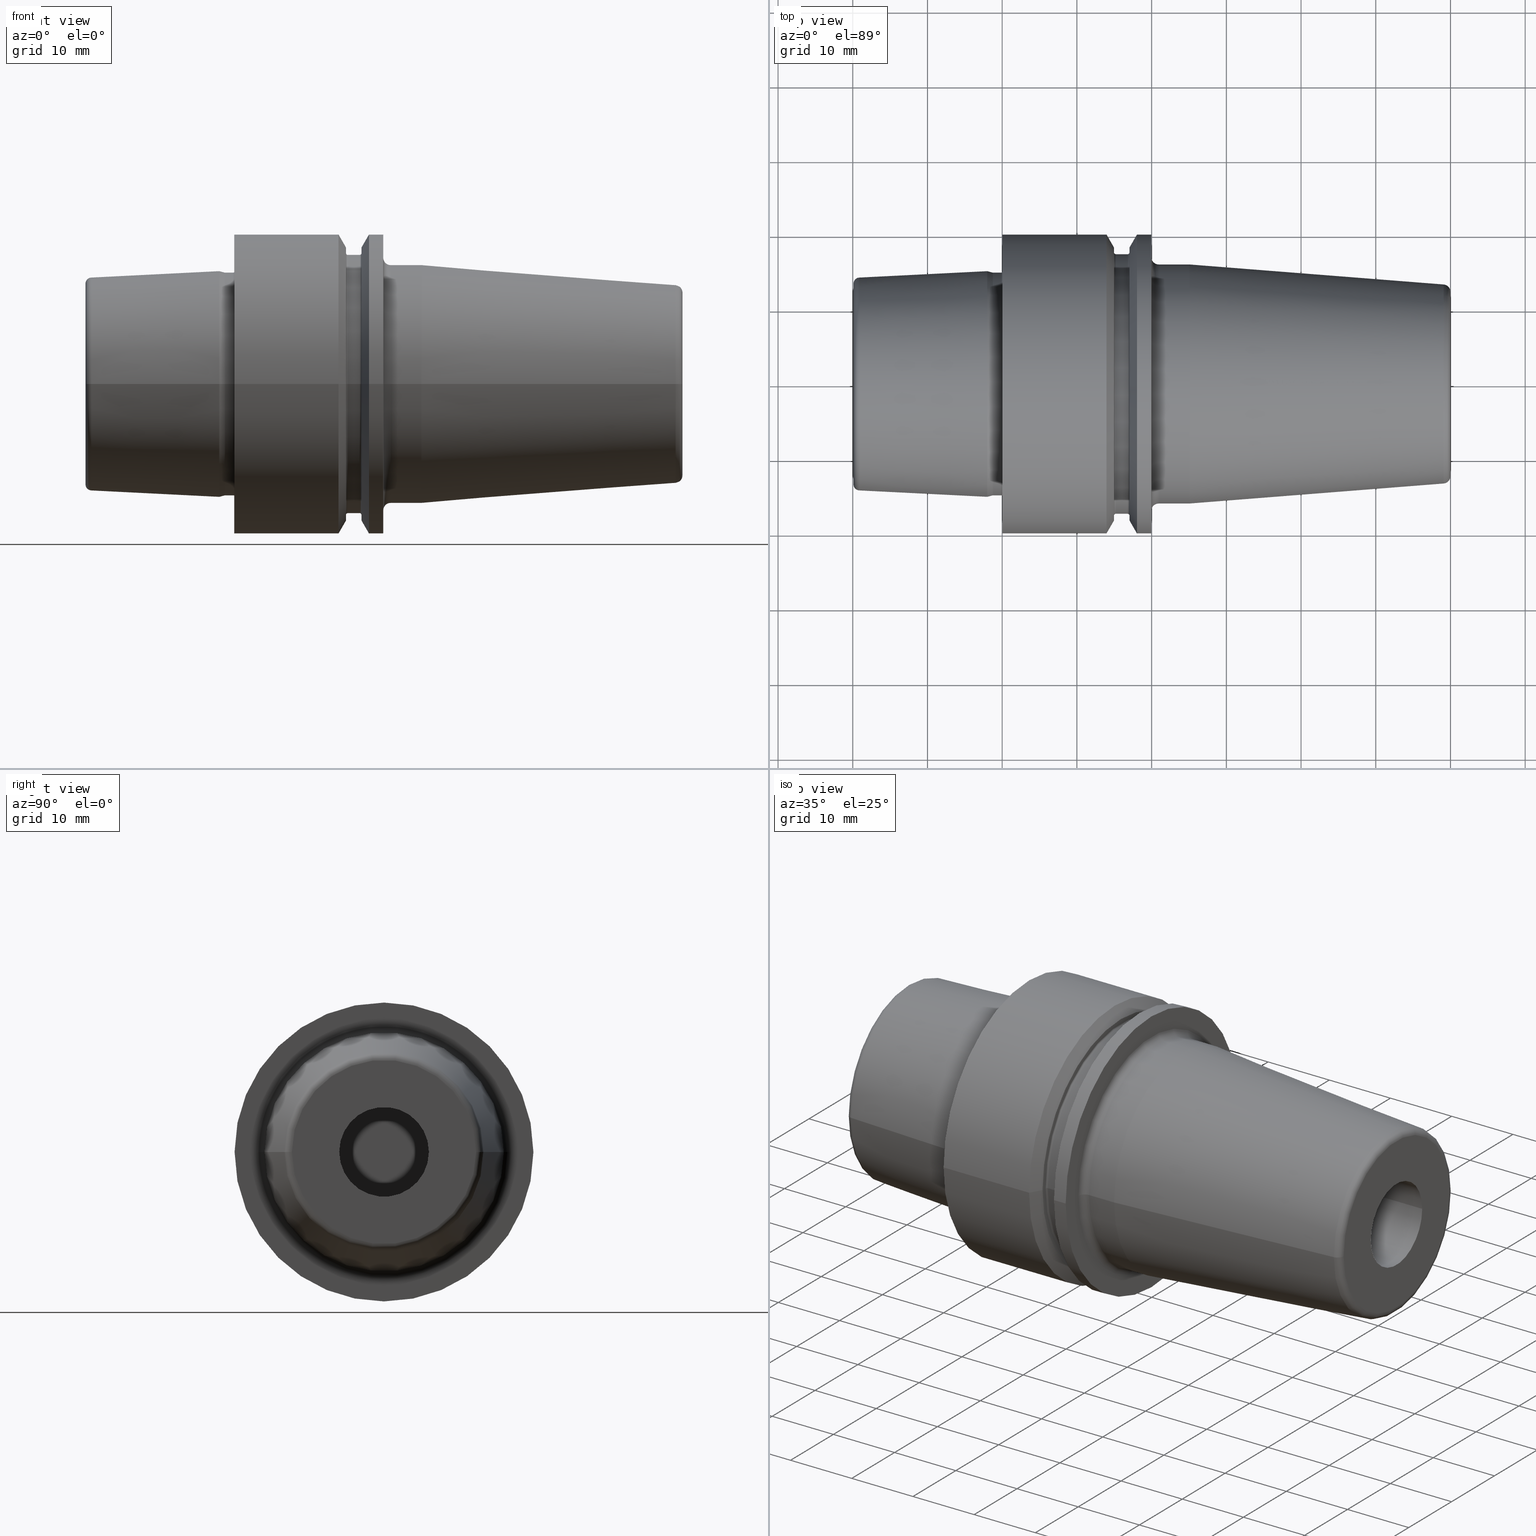
[diagram: canonical four-view strip — front | top / right | iso, engineering-drawing reading convention]
A machine part, canonical four-view strip (front | top / right | iso — engineering-drawing reading convention). The complete STEP part file that produces these views, byte-faithful:
ISO-10303-21;
HEADER;
FILE_DESCRIPTION((''),'2;1');
FILE_NAME('E40-145-12','2013-01-11T',('mei'),(''),
'PRO/ENGINEER BY PARAMETRIC TECHNOLOGY CORPORATION, 2010430',
'PRO/ENGINEER BY PARAMETRIC TECHNOLOGY CORPORATION, 2010430','');
FILE_SCHEMA(('CONFIG_CONTROL_DESIGN'));
ENDSEC;
DATA;
#2=CARTESIAN_POINT('',(-2.E0,0.E0,0.E0));
#3=DIRECTION('',(1.E0,0.E0,0.E0));
#4=DIRECTION('',(0.E0,1.E0,0.E0));
#5=AXIS2_PLACEMENT_3D('',#2,#3,#4);
#7=CARTESIAN_POINT('',(-1.304456457492E0,0.E0,0.E0));
#8=DIRECTION('',(-1.E0,0.E0,0.E0));
#9=DIRECTION('',(0.E0,-1.E0,0.E0));
#10=AXIS2_PLACEMENT_3D('',#7,#8,#9);
#12=DIRECTION('',(-9.659258262891E-1,-2.588190451025E-1,0.E0));
#13=VECTOR('',#12,7.200796619963E-1);
#14=CARTESIAN_POINT('',(-1.304456457492E0,-1.491732966948E1,0.E0));
#15=LINE('',#14,#13);
#16=CARTESIAN_POINT('',(-1.304456457492E0,0.E0,0.E0));
#17=DIRECTION('',(-1.E0,0.E0,0.E0));
#18=DIRECTION('',(0.E0,1.E0,0.E0));
#19=AXIS2_PLACEMENT_3D('',#16,#17,#18);
#21=DIRECTION('',(-9.659258262891E-1,2.588190451025E-1,0.E0));
#22=VECTOR('',#21,7.200796619963E-1);
#23=CARTESIAN_POINT('',(-1.304456457492E0,1.491732966948E1,0.E0));
#24=LINE('',#23,#22);
#25=CARTESIAN_POINT('',(-2.E0,0.E0,0.E0));
#26=DIRECTION('',(1.E0,0.E0,0.E0));
#27=DIRECTION('',(0.E0,-1.E0,0.E0));
#28=AXIS2_PLACEMENT_3D('',#25,#26,#27);
#30=DIRECTION('',(-9.987473526255E-1,-5.003724236654E-2,0.E0));
#31=VECTOR('',#30,1.716152713580E1);
#32=CARTESIAN_POINT('',(-2.E0,1.51037E1,0.E0));
#33=LINE('',#32,#31);
#34=DIRECTION('',(-9.987473526255E-1,5.003724236654E-2,0.E0));
#35=VECTOR('',#34,1.716152713580E1);
#36=CARTESIAN_POINT('',(-2.E0,-1.51037E1,0.E0));
#37=LINE('',#36,#35);
#38=CARTESIAN_POINT('',(-1.91E1,1.344598662523E1,0.E0));
#39=DIRECTION('',(0.E0,0.E0,1.E0));
#40=DIRECTION('',(-5.003724236654E-2,9.987473526255E-1,0.E0));
#41=AXIS2_PLACEMENT_3D('',#38,#39,#40);
#43=CARTESIAN_POINT('',(-1.91E1,-1.344598662523E1,0.E0));
#44=DIRECTION('',(0.E0,0.E0,-1.E0));
#45=DIRECTION('',(-5.003724236654E-2,-9.987473526255E-1,0.E0));
#46=AXIS2_PLACEMENT_3D('',#43,#44,#45);
#48=CARTESIAN_POINT('',(-1.914002979389E1,0.E0,0.E0));
#49=DIRECTION('',(-1.E0,0.E0,0.E0));
#50=DIRECTION('',(0.E0,1.E0,0.E0));
#51=AXIS2_PLACEMENT_3D('',#48,#49,#50);
#53=CARTESIAN_POINT('',(-1.914002979389E1,0.E0,0.E0));
#54=DIRECTION('',(1.E0,0.E0,0.E0));
#55=DIRECTION('',(0.E0,1.E0,0.E0));
#56=AXIS2_PLACEMENT_3D('',#53,#54,#55);
#58=CARTESIAN_POINT('',(-1.99E1,0.E0,0.E0));
#59=DIRECTION('',(-1.E0,0.E0,0.E0));
#60=DIRECTION('',(0.E0,1.E0,0.E0));
#61=AXIS2_PLACEMENT_3D('',#58,#59,#60);
#63=CARTESIAN_POINT('',(-1.99E1,0.E0,0.E0));
#64=DIRECTION('',(1.E0,0.E0,0.E0));
#65=DIRECTION('',(0.E0,1.E0,0.E0));
#66=AXIS2_PLACEMENT_3D('',#63,#64,#65);
#68=CARTESIAN_POINT('',(-1.99E1,0.E0,0.E0));
#69=DIRECTION('',(1.E0,0.E0,0.E0));
#70=DIRECTION('',(0.E0,1.E0,0.E0));
#71=AXIS2_PLACEMENT_3D('',#68,#69,#70);
#73=CARTESIAN_POINT('',(-1.99E1,0.E0,0.E0));
#74=DIRECTION('',(1.E0,0.E0,0.E0));
#75=DIRECTION('',(0.E0,-1.E0,0.E0));
#76=AXIS2_PLACEMENT_3D('',#73,#74,#75);
#78=CARTESIAN_POINT('',(-1.895E1,0.E0,0.E0));
#79=DIRECTION('',(1.E0,0.E0,0.E0));
#80=DIRECTION('',(0.E0,1.E0,0.E0));
#81=AXIS2_PLACEMENT_3D('',#78,#79,#80);
#83=DIRECTION('',(-8.660254037844E-1,5.E-1,0.E0));
#84=VECTOR('',#83,1.096965511460E0);
#85=CARTESIAN_POINT('',(-1.895E1,1.0521E1,0.E0));
#86=LINE('',#85,#84);
#87=CARTESIAN_POINT('',(-1.895E1,0.E0,0.E0));
#88=DIRECTION('',(-1.E0,0.E0,0.E0));
#89=DIRECTION('',(0.E0,1.E0,0.E0));
#90=AXIS2_PLACEMENT_3D('',#87,#88,#89);
#92=DIRECTION('',(-8.660254037844E-1,-5.E-1,0.E0));
#93=VECTOR('',#92,1.096965511460E0);
#94=CARTESIAN_POINT('',(-1.895E1,-1.0521E1,0.E0));
#95=LINE('',#94,#93);
#96=DIRECTION('',(-1.E0,0.E0,0.E0));
#97=VECTOR('',#96,6.964774086463E0);
#98=CARTESIAN_POINT('',(-1.198522591354E1,1.0521E1,0.E0));
#99=LINE('',#98,#97);
#100=CARTESIAN_POINT('',(-1.198522591354E1,0.E0,0.E0));
#101=DIRECTION('',(-1.E0,0.E0,0.E0));
#102=DIRECTION('',(0.E0,1.E0,0.E0));
#103=AXIS2_PLACEMENT_3D('',#100,#101,#102);
#105=DIRECTION('',(-1.E0,0.E0,0.E0));
#106=VECTOR('',#105,6.964774086463E0);
#107=CARTESIAN_POINT('',(-1.198522591354E1,-1.0521E1,0.E0));
#108=LINE('',#107,#106);
#109=CARTESIAN_POINT('',(-1.198522591354E1,0.E0,0.E0));
#110=DIRECTION('',(1.E0,0.E0,0.E0));
#111=DIRECTION('',(0.E0,1.E0,0.E0));
#112=AXIS2_PLACEMENT_3D('',#109,#110,#111);
#114=CARTESIAN_POINT('',(-1.079501833360E1,0.E0,0.E0));
#115=DIRECTION('',(1.E0,0.E0,0.E0));
#116=DIRECTION('',(0.E0,1.E0,0.E0));
#117=AXIS2_PLACEMENT_3D('',#114,#115,#116);
#119=DIRECTION('',(-5.E-1,-8.660254037844E-1,0.E0));
#120=VECTOR('',#119,2.380415159869E0);
#121=CARTESIAN_POINT('',(-1.079501833360E1,1.25825E1,0.E0));
#122=LINE('',#121,#120);
#123=CARTESIAN_POINT('',(-1.079501833360E1,0.E0,0.E0));
#124=DIRECTION('',(-1.E0,0.E0,0.E0));
#125=DIRECTION('',(0.E0,1.E0,0.E0));
#126=AXIS2_PLACEMENT_3D('',#123,#124,#125);
#128=DIRECTION('',(-5.E-1,8.660254037844E-1,0.E0));
#129=VECTOR('',#128,2.380415159869E0);
#130=CARTESIAN_POINT('',(-1.079501833360E1,-1.25825E1,0.E0));
#131=LINE('',#130,#129);
#132=CARTESIAN_POINT('',(-1.044860817209E1,1.23825E1,0.E0));
#133=DIRECTION('',(0.E0,0.E0,1.E0));
#134=DIRECTION('',(0.E0,1.E0,0.E0));
#135=AXIS2_PLACEMENT_3D('',#132,#133,#134);
#137=CARTESIAN_POINT('',(-1.044860817209E1,0.E0,0.E0));
#138=DIRECTION('',(-1.E0,0.E0,0.E0));
#139=DIRECTION('',(0.E0,1.E0,0.E0));
#140=AXIS2_PLACEMENT_3D('',#137,#138,#139);
#142=CARTESIAN_POINT('',(-1.044860817209E1,-1.23825E1,0.E0));
#143=DIRECTION('',(0.E0,0.E0,-1.E0));
#144=DIRECTION('',(0.E0,-1.E0,0.E0));
#145=AXIS2_PLACEMENT_3D('',#142,#143,#144);
#147=CARTESIAN_POINT('',(-1.044860817209E1,0.E0,0.E0));
#148=DIRECTION('',(1.E0,0.E0,0.E0));
#149=DIRECTION('',(0.E0,1.E0,0.E0));
#150=AXIS2_PLACEMENT_3D('',#147,#148,#149);
#152=CARTESIAN_POINT('',(-4.183373967266E0,0.E0,0.E0));
#153=DIRECTION('',(1.E0,0.E0,0.E0));
#154=DIRECTION('',(0.E0,1.E0,0.E0));
#155=AXIS2_PLACEMENT_3D('',#152,#153,#154);
#157=DIRECTION('',(-1.E0,0.E0,0.E0));
#158=VECTOR('',#157,6.265234204822E0);
#159=CARTESIAN_POINT('',(-4.183373967266E0,1.27825E1,0.E0));
#160=LINE('',#159,#158);
#161=CARTESIAN_POINT('',(-4.183373967266E0,0.E0,0.E0));
#162=DIRECTION('',(-1.E0,0.E0,0.E0));
#163=DIRECTION('',(0.E0,1.E0,0.E0));
#164=AXIS2_PLACEMENT_3D('',#161,#162,#163);
#166=DIRECTION('',(-1.E0,0.E0,0.E0));
#167=VECTOR('',#166,6.265234204822E0);
#168=CARTESIAN_POINT('',(-4.183373967266E0,-1.27825E1,0.E0));
#169=LINE('',#168,#167);
#170=CARTESIAN_POINT('',(-4.183373967266E0,7.7825E0,0.E0));
#171=DIRECTION('',(0.E0,0.E0,1.E0));
#172=DIRECTION('',(8.366747934532E-1,5.477E-1,0.E0));
#173=AXIS2_PLACEMENT_3D('',#170,#171,#172);
#175=CARTESIAN_POINT('',(0.E0,0.E0,0.E0));
#176=DIRECTION('',(-1.E0,0.E0,0.E0));
#177=DIRECTION('',(0.E0,1.E0,0.E0));
#178=AXIS2_PLACEMENT_3D('',#175,#176,#177);
#180=CARTESIAN_POINT('',(-4.183373967266E0,-7.7825E0,0.E0));
#181=DIRECTION('',(0.E0,0.E0,-1.E0));
#182=DIRECTION('',(8.366747934532E-1,-5.477E-1,0.E0));
#183=AXIS2_PLACEMENT_3D('',#180,#181,#182);
#185=CARTESIAN_POINT('',(0.E0,0.E0,0.E0));
#186=DIRECTION('',(1.E0,0.E0,0.E0));
#187=DIRECTION('',(0.E0,1.E0,0.E0));
#188=AXIS2_PLACEMENT_3D('',#185,#186,#187);
#190=CARTESIAN_POINT('',(6.186662590986E0,0.E0,0.E0));
#191=DIRECTION('',(1.E0,0.E0,0.E0));
#192=DIRECTION('',(0.E0,1.E0,0.E0));
#193=AXIS2_PLACEMENT_3D('',#190,#191,#192);
#195=DIRECTION('',(-1.E0,0.E0,0.E0));
#196=VECTOR('',#195,6.186662590986E0);
#197=CARTESIAN_POINT('',(6.186662590986E0,1.0521E1,0.E0));
#198=LINE('',#197,#196);
#199=CARTESIAN_POINT('',(6.186662590986E0,0.E0,0.E0));
#200=DIRECTION('',(-1.E0,0.E0,0.E0));
#201=DIRECTION('',(0.E0,1.E0,0.E0));
#202=AXIS2_PLACEMENT_3D('',#199,#200,#201);
#204=DIRECTION('',(-1.E0,0.E0,0.E0));
#205=VECTOR('',#204,6.186662590986E0);
#206=CARTESIAN_POINT('',(6.186662590986E0,-1.0521E1,0.E0));
#207=LINE('',#206,#205);
#208=CARTESIAN_POINT('',(6.95E0,9.875E0,0.E0));
#209=DIRECTION('',(0.E0,0.E0,1.E0));
#210=DIRECTION('',(1.E0,0.E0,0.E0));
#211=AXIS2_PLACEMENT_3D('',#208,#209,#210);
#213=CARTESIAN_POINT('',(7.95E0,0.E0,0.E0));
#214=DIRECTION('',(-1.E0,0.E0,0.E0));
#215=DIRECTION('',(0.E0,1.E0,0.E0));
#216=AXIS2_PLACEMENT_3D('',#213,#214,#215);
#218=CARTESIAN_POINT('',(6.95E0,-9.875E0,0.E0));
#219=DIRECTION('',(0.E0,0.E0,-1.E0));
#220=DIRECTION('',(1.E0,0.E0,0.E0));
#221=AXIS2_PLACEMENT_3D('',#218,#219,#220);
#223=CARTESIAN_POINT('',(7.95E0,0.E0,0.E0));
#224=DIRECTION('',(1.E0,0.E0,0.E0));
#225=DIRECTION('',(0.E0,1.E0,0.E0));
#226=AXIS2_PLACEMENT_3D('',#223,#224,#225);
#228=CARTESIAN_POINT('',(-1.200928839451E0,1.53037E1,0.E0));
#229=DIRECTION('',(0.E0,0.E0,-1.E0));
#230=DIRECTION('',(0.E0,-1.E0,0.E0));
#231=AXIS2_PLACEMENT_3D('',#228,#229,#230);
#233=CARTESIAN_POINT('',(-1.200928839451E0,-1.53037E1,0.E0));
#234=DIRECTION('',(0.E0,0.E0,1.E0));
#235=DIRECTION('',(0.E0,1.E0,0.E0));
#236=AXIS2_PLACEMENT_3D('',#233,#234,#235);
#238=CARTESIAN_POINT('',(-1.200928839451E0,0.E0,0.E0));
#239=DIRECTION('',(-1.E0,0.E0,0.E0));
#240=DIRECTION('',(0.E0,1.E0,0.E0));
#241=AXIS2_PLACEMENT_3D('',#238,#239,#240);
#243=CARTESIAN_POINT('',(-1.200928839451E0,0.E0,0.E0));
#244=DIRECTION('',(-1.E0,0.E0,0.E0));
#245=DIRECTION('',(0.E0,-1.E0,0.E0));
#246=AXIS2_PLACEMENT_3D('',#243,#244,#245);
#248=CARTESIAN_POINT('',(-1.541771632753E-1,0.E0,0.E0));
#249=DIRECTION('',(-1.E0,0.E0,0.E0));
#250=DIRECTION('',(0.E0,-1.E0,0.E0));
#251=AXIS2_PLACEMENT_3D('',#248,#249,#250);
#253=DIRECTION('',(-1.E0,0.E0,0.E0));
#254=VECTOR('',#253,1.046751676176E0);
#255=CARTESIAN_POINT('',(-1.541771632753E-1,1.49037E1,0.E0));
#256=LINE('',#255,#254);
#257=DIRECTION('',(-1.E0,0.E0,0.E0));
#258=VECTOR('',#257,1.046751676176E0);
#259=CARTESIAN_POINT('',(-1.541771632753E-1,-1.49037E1,0.E0));
#260=LINE('',#259,#258);
#261=CARTESIAN_POINT('',(-1.541771632753E-1,0.E0,0.E0));
#262=DIRECTION('',(-1.E0,0.E0,0.E0));
#263=DIRECTION('',(0.E0,1.E0,0.E0));
#264=AXIS2_PLACEMENT_3D('',#261,#262,#263);
#266=CARTESIAN_POINT('',(-1.541771632753E-1,1.53037E1,0.E0));
#267=DIRECTION('',(0.E0,0.E0,-1.E0));
#268=DIRECTION('',(9.304175679820E-1,3.665012267243E-1,0.E0));
#269=AXIS2_PLACEMENT_3D('',#266,#267,#268);
#271=CARTESIAN_POINT('',(-1.541771632753E-1,-1.53037E1,0.E0));
#272=DIRECTION('',(0.E0,0.E0,1.E0));
#273=DIRECTION('',(9.304175679820E-1,-3.665012267243E-1,0.E0));
#274=AXIS2_PLACEMENT_3D('',#271,#272,#273);
#276=CARTESIAN_POINT('',(2.179898639175E-1,0.E0,0.E0));
#277=DIRECTION('',(-1.E0,0.E0,0.E0));
#278=DIRECTION('',(0.E0,1.E0,0.E0));
#279=AXIS2_PLACEMENT_3D('',#276,#277,#278);
#281=CARTESIAN_POINT('',(2.179898639175E-1,0.E0,0.E0));
#282=DIRECTION('',(-1.E0,0.E0,0.E0));
#283=DIRECTION('',(0.E0,-1.E0,0.E0));
#284=AXIS2_PLACEMENT_3D('',#281,#282,#283);
#286=DIRECTION('',(3.665012267243E-1,9.304175679820E-1,0.E0));
#287=VECTOR('',#286,5.947861781141E-1);
#288=CARTESIAN_POINT('',(0.E0,-1.60037E1,0.E0));
#289=LINE('',#288,#287);
#290=DIRECTION('',(3.665012267243E-1,-9.304175679820E-1,0.E0));
#291=VECTOR('',#290,5.947861781141E-1);
#292=CARTESIAN_POINT('',(0.E0,1.60037E1,0.E0));
#293=LINE('',#292,#291);
#294=CARTESIAN_POINT('',(-1.065814103640E-14,0.E0,0.E0));
#295=DIRECTION('',(1.E0,0.E0,0.E0));
#296=DIRECTION('',(0.E0,1.E0,0.E0));
#297=AXIS2_PLACEMENT_3D('',#294,#295,#296);
#299=CARTESIAN_POINT('',(-1.065814103640E-14,0.E0,0.E0));
#300=DIRECTION('',(-1.E0,0.E0,0.E0));
#301=DIRECTION('',(0.E0,1.E0,0.E0));
#302=AXIS2_PLACEMENT_3D('',#299,#300,#301);
#304=CARTESIAN_POINT('',(0.E0,0.E0,0.E0));
#305=DIRECTION('',(-1.E0,0.E0,0.E0));
#306=DIRECTION('',(0.E0,-1.E0,0.E0));
#307=AXIS2_PLACEMENT_3D('',#304,#305,#306);
#309=CARTESIAN_POINT('',(0.E0,0.E0,0.E0));
#310=DIRECTION('',(-1.E0,0.E0,0.E0));
#311=DIRECTION('',(0.E0,1.E0,0.E0));
#312=AXIS2_PLACEMENT_3D('',#309,#310,#311);
#314=CARTESIAN_POINT('',(1.803515969889E1,0.E0,0.E0));
#315=DIRECTION('',(1.E0,0.E0,0.E0));
#316=DIRECTION('',(0.E0,1.E0,0.E0));
#317=AXIS2_PLACEMENT_3D('',#314,#315,#316);
#319=CARTESIAN_POINT('',(1.995E1,0.E0,0.E0));
#320=DIRECTION('',(1.E0,0.E0,0.E0));
#321=DIRECTION('',(0.E0,1.E0,0.E0));
#322=AXIS2_PLACEMENT_3D('',#319,#320,#321);
#324=CARTESIAN_POINT('',(1.396484030111E1,0.E0,0.E0));
#325=DIRECTION('',(1.E0,0.E0,0.E0));
#326=DIRECTION('',(0.E0,1.E0,0.E0));
#327=AXIS2_PLACEMENT_3D('',#324,#325,#326);
#329=CARTESIAN_POINT('',(1.70375E1,0.E0,0.E0));
#330=DIRECTION('',(1.E0,0.E0,0.E0));
#331=DIRECTION('',(0.E0,1.E0,0.E0));
#332=AXIS2_PLACEMENT_3D('',#329,#330,#331);
#334=DIRECTION('',(5.E-1,8.660254037844E-1,0.E0));
#335=VECTOR('',#334,1.995319397787E0);
#336=CARTESIAN_POINT('',(1.70375E1,1.827200271285E1,0.E0));
#337=LINE('',#336,#335);
#338=CARTESIAN_POINT('',(1.70375E1,0.E0,0.E0));
#339=DIRECTION('',(-1.E0,0.E0,0.E0));
#340=DIRECTION('',(0.E0,1.E0,0.E0));
#341=AXIS2_PLACEMENT_3D('',#338,#339,#340);
#343=DIRECTION('',(5.E-1,-8.660254037844E-1,0.E0));
#344=VECTOR('',#343,1.995319397787E0);
#345=CARTESIAN_POINT('',(1.70375E1,-1.827200271285E1,0.E0));
#346=LINE('',#345,#344);
#347=CARTESIAN_POINT('',(1.70375E1,0.E0,0.E0));
#348=DIRECTION('',(-1.E0,0.E0,0.E0));
#349=DIRECTION('',(0.E0,1.E0,0.E0));
#350=AXIS2_PLACEMENT_3D('',#347,#348,#349);
#352=CARTESIAN_POINT('',(1.70375E1,0.E0,0.E0));
#353=DIRECTION('',(1.E0,0.E0,0.E0));
#354=DIRECTION('',(0.E0,1.E0,0.E0));
#355=AXIS2_PLACEMENT_3D('',#352,#353,#354);
#357=CARTESIAN_POINT('',(1.67875E1,1.7625E1,0.E0));
#358=DIRECTION('',(0.E0,0.E0,1.E0));
#359=DIRECTION('',(0.E0,-1.E0,0.E0));
#360=AXIS2_PLACEMENT_3D('',#357,#358,#359);
#362=CARTESIAN_POINT('',(1.67875E1,0.E0,0.E0));
#363=DIRECTION('',(-1.E0,0.E0,0.E0));
#364=DIRECTION('',(0.E0,1.E0,0.E0));
#365=AXIS2_PLACEMENT_3D('',#362,#363,#364);
#367=CARTESIAN_POINT('',(1.67875E1,-1.7625E1,0.E0));
#368=DIRECTION('',(0.E0,0.E0,-1.E0));
#369=DIRECTION('',(0.E0,1.E0,0.E0));
#370=AXIS2_PLACEMENT_3D('',#367,#368,#369);
#372=CARTESIAN_POINT('',(1.67875E1,0.E0,0.E0));
#373=DIRECTION('',(1.E0,0.E0,0.E0));
#374=DIRECTION('',(0.E0,1.E0,0.E0));
#375=AXIS2_PLACEMENT_3D('',#372,#373,#374);
#377=CARTESIAN_POINT('',(1.52125E1,0.E0,0.E0));
#378=DIRECTION('',(1.E0,0.E0,0.E0));
#379=DIRECTION('',(0.E0,1.E0,0.E0));
#380=AXIS2_PLACEMENT_3D('',#377,#378,#379);
#382=DIRECTION('',(1.E0,0.E0,0.E0));
#383=VECTOR('',#382,1.575E0);
#384=CARTESIAN_POINT('',(1.52125E1,-1.7375E1,0.E0));
#385=LINE('',#384,#383);
#386=DIRECTION('',(-1.E0,0.E0,0.E0));
#387=VECTOR('',#386,1.575E0);
#388=CARTESIAN_POINT('',(1.67875E1,1.7375E1,0.E0));
#389=LINE('',#388,#387);
#390=CARTESIAN_POINT('',(1.52125E1,0.E0,0.E0));
#391=DIRECTION('',(-1.E0,0.E0,0.E0));
#392=DIRECTION('',(0.E0,1.E0,0.E0));
#393=AXIS2_PLACEMENT_3D('',#390,#391,#392);
#395=CARTESIAN_POINT('',(1.52125E1,1.7625E1,0.E0));
#396=DIRECTION('',(0.E0,0.E0,1.E0));
#397=DIRECTION('',(-1.E0,0.E0,0.E0));
#398=AXIS2_PLACEMENT_3D('',#395,#396,#397);
#400=CARTESIAN_POINT('',(1.49625E1,0.E0,0.E0));
#401=DIRECTION('',(-1.E0,0.E0,0.E0));
#402=DIRECTION('',(0.E0,1.E0,0.E0));
#403=AXIS2_PLACEMENT_3D('',#400,#401,#402);
#405=CARTESIAN_POINT('',(1.52125E1,-1.7625E1,0.E0));
#406=DIRECTION('',(0.E0,0.E0,-1.E0));
#407=DIRECTION('',(-1.E0,0.E0,0.E0));
#408=AXIS2_PLACEMENT_3D('',#405,#406,#407);
#410=CARTESIAN_POINT('',(1.49625E1,0.E0,0.E0));
#411=DIRECTION('',(1.E0,0.E0,0.E0));
#412=DIRECTION('',(0.E0,1.E0,0.E0));
#413=AXIS2_PLACEMENT_3D('',#410,#411,#412);
#415=CARTESIAN_POINT('',(1.49625E1,0.E0,0.E0));
#416=DIRECTION('',(-1.E0,0.E0,0.E0));
#417=DIRECTION('',(0.E0,1.E0,0.E0));
#418=AXIS2_PLACEMENT_3D('',#415,#416,#417);
#420=CARTESIAN_POINT('',(1.49625E1,0.E0,0.E0));
#421=DIRECTION('',(1.E0,0.E0,0.E0));
#422=DIRECTION('',(0.E0,1.E0,0.E0));
#423=AXIS2_PLACEMENT_3D('',#420,#421,#422);
#425=DIRECTION('',(5.E-1,-8.660254037844E-1,0.E0));
#426=VECTOR('',#425,1.995319397787E0);
#427=CARTESIAN_POINT('',(1.396484030111E1,2.E1,0.E0));
#428=LINE('',#427,#426);
#429=DIRECTION('',(5.E-1,8.660254037844E-1,0.E0));
#430=VECTOR('',#429,1.995319397787E0);
#431=CARTESIAN_POINT('',(1.396484030111E1,-2.E1,0.E0));
#432=LINE('',#431,#430);
#433=CARTESIAN_POINT('',(1.803515969889E1,0.E0,0.E0));
#434=DIRECTION('',(1.E0,0.E0,0.E0));
#435=DIRECTION('',(0.E0,-1.E0,0.E0));
#436=AXIS2_PLACEMENT_3D('',#433,#434,#435);
#438=DIRECTION('',(-1.E0,0.E0,0.E0));
#439=VECTOR('',#438,1.914840301107E0);
#440=CARTESIAN_POINT('',(1.995E1,-2.E1,0.E0));
#441=LINE('',#440,#439);
#442=CARTESIAN_POINT('',(1.995E1,0.E0,0.E0));
#443=DIRECTION('',(-1.E0,0.E0,0.E0));
#444=DIRECTION('',(0.E0,1.E0,0.E0));
#445=AXIS2_PLACEMENT_3D('',#442,#443,#444);
#447=DIRECTION('',(-1.E0,0.E0,0.E0));
#448=VECTOR('',#447,1.914840301107E0);
#449=CARTESIAN_POINT('',(1.995E1,2.E1,0.E0));
#450=LINE('',#449,#448);
#451=CARTESIAN_POINT('',(1.396484030111E1,0.E0,0.E0));
#452=DIRECTION('',(1.E0,0.E0,0.E0));
#453=DIRECTION('',(0.E0,-1.E0,0.E0));
#454=AXIS2_PLACEMENT_3D('',#451,#452,#453);
#456=DIRECTION('',(-1.E0,0.E0,0.E0));
#457=VECTOR('',#456,1.396484030111E1);
#458=CARTESIAN_POINT('',(1.396484030111E1,2.E1,0.E0));
#459=LINE('',#458,#457);
#460=DIRECTION('',(-1.E0,0.E0,0.E0));
#461=VECTOR('',#460,1.396484030111E1);
#462=CARTESIAN_POINT('',(1.396484030111E1,-2.E1,0.E0));
#463=LINE('',#462,#461);
#464=CARTESIAN_POINT('',(1.995E1,0.E0,0.E0));
#465=DIRECTION('',(1.E0,0.E0,0.E0));
#466=DIRECTION('',(0.E0,-1.E0,0.E0));
#467=AXIS2_PLACEMENT_3D('',#464,#465,#466);
#469=CARTESIAN_POINT('',(1.995E1,0.E0,0.E0));
#470=DIRECTION('',(1.E0,0.E0,0.E0));
#471=DIRECTION('',(0.E0,1.E0,0.E0));
#472=AXIS2_PLACEMENT_3D('',#469,#470,#471);
#474=CARTESIAN_POINT('',(2.095E1,-1.7E1,0.E0));
#475=DIRECTION('',(0.E0,0.E0,-1.E0));
#476=DIRECTION('',(-1.E0,0.E0,0.E0));
#477=AXIS2_PLACEMENT_3D('',#474,#475,#476);
#479=CARTESIAN_POINT('',(2.095E1,1.7E1,-1.021405182655E-14));
#480=DIRECTION('',(0.E0,0.E0,1.E0));
#481=DIRECTION('',(-1.E0,-1.065814103640E-14,0.E0));
#482=AXIS2_PLACEMENT_3D('',#479,#480,#481);
#484=CARTESIAN_POINT('',(2.095E1,0.E0,0.E0));
#485=DIRECTION('',(1.E0,0.E0,0.E0));
#486=DIRECTION('',(0.E0,1.E0,0.E0));
#487=AXIS2_PLACEMENT_3D('',#484,#485,#486);
#489=CARTESIAN_POINT('',(2.505793697552E1,0.E0,0.E0));
#490=DIRECTION('',(1.E0,0.E0,0.E0));
#491=DIRECTION('',(0.E0,1.E0,0.E0));
#492=AXIS2_PLACEMENT_3D('',#489,#490,#491);
#494=CARTESIAN_POINT('',(2.095E1,0.E0,0.E0));
#495=DIRECTION('',(1.E0,0.E0,0.E0));
#496=DIRECTION('',(0.E0,-1.E0,0.E0));
#497=AXIS2_PLACEMENT_3D('',#494,#495,#496);
#499=DIRECTION('',(-1.E0,0.E0,-8.826939512410E-14));
#500=VECTOR('',#499,4.107936975520E0);
#501=CARTESIAN_POINT('',(2.505793697552E1,-1.6E1,0.E0));
#502=LINE('',#501,#500);
#503=CARTESIAN_POINT('',(2.505793697552E1,0.E0,0.E0));
#504=DIRECTION('',(-1.E0,0.E0,0.E0));
#505=DIRECTION('',(0.E0,1.E0,0.E0));
#506=AXIS2_PLACEMENT_3D('',#503,#504,#505);
#508=DIRECTION('',(-1.E0,0.E0,8.815774937592E-14));
#509=VECTOR('',#508,4.107936975520E0);
#510=CARTESIAN_POINT('',(2.505793697552E1,1.6E1,0.E0));
#511=LINE('',#510,#509);
#512=CARTESIAN_POINT('',(5.907845909573E1,0.E0,0.E0));
#513=DIRECTION('',(-1.E0,0.E0,0.E0));
#514=DIRECTION('',(0.E0,1.E0,0.E0));
#515=AXIS2_PLACEMENT_3D('',#512,#513,#514);
#517=DIRECTION('',(-9.969173337331E-1,7.845909572785E-2,1.994380427684E-14));
#518=VECTOR('',#517,3.412572032709E1);
#519=CARTESIAN_POINT('',(5.907845909573E1,1.332252684207E1,
-6.786372521310E-13));
#520=LINE('',#519,#518);
#521=DIRECTION('',(-9.969173337331E-1,-7.845909572785E-2,-1.993185186257E-14));
#522=VECTOR('',#521,3.412572032709E1);
#523=CARTESIAN_POINT('',(5.907845909573E1,-1.332252684207E1,
6.782293673846E-13));
#524=LINE('',#523,#522);
#525=CARTESIAN_POINT('',(5.9E1,1.232560950834E1,1.596273807580E-11));
#526=DIRECTION('',(0.E0,1.295086433928E-12,-1.E0));
#527=DIRECTION('',(7.845909572792E-2,9.969173337331E-1,1.291094114665E-12));
#528=AXIS2_PLACEMENT_3D('',#525,#526,#527);
#530=CARTESIAN_POINT('',(5.9E1,-1.232560950834E1,-1.596164866946E-11));
#531=DIRECTION('',(0.E0,-1.294997963031E-12,1.E0));
#532=DIRECTION('',(7.845909572792E-2,-9.969173337331E-1,-1.291005916494E-12));
#533=AXIS2_PLACEMENT_3D('',#530,#531,#532);
#535=CARTESIAN_POINT('',(5.907845909573E1,0.E0,0.E0));
#536=DIRECTION('',(-1.E0,0.E0,0.E0));
#537=DIRECTION('',(0.E0,-1.E0,0.E0));
#538=AXIS2_PLACEMENT_3D('',#535,#536,#537);
#540=CARTESIAN_POINT('',(6.E1,0.E0,0.E0));
#541=DIRECTION('',(-1.E0,0.E0,0.E0));
#542=DIRECTION('',(0.E0,1.E0,0.E0));
#543=AXIS2_PLACEMENT_3D('',#540,#541,#542);
#545=CARTESIAN_POINT('',(6.E1,0.E0,0.E0));
#546=DIRECTION('',(-1.E0,0.E0,0.E0));
#547=DIRECTION('',(0.E0,-1.E0,0.E0));
#548=AXIS2_PLACEMENT_3D('',#545,#546,#547);
#550=CARTESIAN_POINT('',(6.E1,0.E0,0.E0));
#551=DIRECTION('',(-1.E0,0.E0,0.E0));
#552=DIRECTION('',(0.E0,-1.E0,0.E0));
#553=AXIS2_PLACEMENT_3D('',#550,#551,#552);
#555=CARTESIAN_POINT('',(6.E1,0.E0,0.E0));
#556=DIRECTION('',(-1.E0,0.E0,0.E0));
#557=DIRECTION('',(0.E0,1.E0,0.E0));
#558=AXIS2_PLACEMENT_3D('',#555,#556,#557);
#560=DIRECTION('',(-1.E0,0.E0,0.E0));
#561=VECTOR('',#560,4.8E1);
#562=CARTESIAN_POINT('',(6.E1,-6.E0,0.E0));
#563=LINE('',#562,#561);
#564=DIRECTION('',(-1.E0,0.E0,0.E0));
#565=VECTOR('',#564,4.8E1);
#566=CARTESIAN_POINT('',(6.E1,6.E0,0.E0));
#567=LINE('',#566,#565);
#568=CARTESIAN_POINT('',(1.2E1,0.E0,0.E0));
#569=DIRECTION('',(-1.E0,0.E0,0.E0));
#570=DIRECTION('',(0.E0,-1.E0,0.E0));
#571=AXIS2_PLACEMENT_3D('',#568,#569,#570);
#573=CARTESIAN_POINT('',(1.2E1,0.E0,0.E0));
#574=DIRECTION('',(-1.E0,0.E0,0.E0));
#575=DIRECTION('',(0.E0,1.E0,0.E0));
#576=AXIS2_PLACEMENT_3D('',#573,#574,#575);
#578=CARTESIAN_POINT('',(2.179898639175E-1,-1.545030049069E1,0.E0));
#579=CARTESIAN_POINT('',(-1.541771632753E-1,-1.49037E1,0.E0));
#580=VERTEX_POINT('',#578);
#581=VERTEX_POINT('',#579);
#582=CARTESIAN_POINT('',(-1.200928839451E0,-1.49037E1,0.E0));
#583=VERTEX_POINT('',#582);
#584=CARTESIAN_POINT('',(-1.304456457492E0,-1.491732966948E1,0.E0));
#585=VERTEX_POINT('',#584);
#586=CARTESIAN_POINT('',(2.179898639175E-1,1.545030049069E1,0.E0));
#587=CARTESIAN_POINT('',(-1.541771632753E-1,1.49037E1,0.E0));
#588=VERTEX_POINT('',#586);
#589=VERTEX_POINT('',#587);
#590=CARTESIAN_POINT('',(-1.200928839451E0,1.49037E1,0.E0));
#591=VERTEX_POINT('',#590);
#592=CARTESIAN_POINT('',(-1.304456457492E0,1.491732966948E1,0.E0));
#593=VERTEX_POINT('',#592);
#594=CARTESIAN_POINT('',(-2.E0,1.51037E1,0.E0));
#595=CARTESIAN_POINT('',(-2.E0,-1.51037E1,0.E0));
#596=VERTEX_POINT('',#594);
#597=VERTEX_POINT('',#595);
#598=CARTESIAN_POINT('',(-1.914002979389E1,1.424498450733E1,0.E0));
#599=VERTEX_POINT('',#598);
#600=CARTESIAN_POINT('',(-1.914002979389E1,-1.424498450733E1,0.E0));
#601=VERTEX_POINT('',#600);
#602=CARTESIAN_POINT('',(0.E0,-1.60037E1,0.E0));
#603=VERTEX_POINT('',#602);
#604=CARTESIAN_POINT('',(0.E0,1.60037E1,0.E0));
#605=VERTEX_POINT('',#604);
#606=CARTESIAN_POINT('',(-1.99E1,1.344598662523E1,0.E0));
#607=VERTEX_POINT('',#606);
#608=CARTESIAN_POINT('',(-1.99E1,-1.344598662523E1,0.E0));
#609=VERTEX_POINT('',#608);
#610=CARTESIAN_POINT('',(7.95E0,9.875E0,0.E0));
#611=CARTESIAN_POINT('',(6.186662590986E0,1.0521E1,0.E0));
#612=VERTEX_POINT('',#610);
#613=VERTEX_POINT('',#611);
#614=CARTESIAN_POINT('',(7.95E0,-9.875E0,0.E0));
#615=CARTESIAN_POINT('',(6.186662590986E0,-1.0521E1,0.E0));
#616=VERTEX_POINT('',#614);
#617=VERTEX_POINT('',#615);
#618=CARTESIAN_POINT('',(1.49625E1,1.7625E1,0.E0));
#619=CARTESIAN_POINT('',(1.52125E1,1.7375E1,0.E0));
#620=VERTEX_POINT('',#618);
#621=VERTEX_POINT('',#619);
#622=CARTESIAN_POINT('',(1.67875E1,1.7375E1,0.E0));
#623=CARTESIAN_POINT('',(1.70375E1,1.7625E1,0.E0));
#624=VERTEX_POINT('',#622);
#625=VERTEX_POINT('',#623);
#626=CARTESIAN_POINT('',(1.49625E1,-1.7625E1,0.E0));
#627=CARTESIAN_POINT('',(1.52125E1,-1.7375E1,0.E0));
#628=VERTEX_POINT('',#626);
#629=VERTEX_POINT('',#627);
#630=CARTESIAN_POINT('',(1.67875E1,-1.7375E1,0.E0));
#631=CARTESIAN_POINT('',(1.70375E1,-1.7625E1,0.E0));
#632=VERTEX_POINT('',#630);
#633=VERTEX_POINT('',#631);
#634=CARTESIAN_POINT('',(1.49625E1,1.827200271285E1,0.E0));
#635=CARTESIAN_POINT('',(1.49625E1,-1.827200271285E1,0.E0));
#636=VERTEX_POINT('',#634);
#637=VERTEX_POINT('',#635);
#638=CARTESIAN_POINT('',(1.70375E1,1.827200271285E1,0.E0));
#639=CARTESIAN_POINT('',(1.70375E1,-1.827200271285E1,0.E0));
#640=VERTEX_POINT('',#638);
#641=VERTEX_POINT('',#639);
#642=CARTESIAN_POINT('',(1.803515969889E1,2.E1,0.E0));
#643=VERTEX_POINT('',#642);
#644=CARTESIAN_POINT('',(1.396484030111E1,2.E1,0.E0));
#645=VERTEX_POINT('',#644);
#646=CARTESIAN_POINT('',(1.803515969889E1,-2.E1,0.E0));
#647=VERTEX_POINT('',#646);
#648=CARTESIAN_POINT('',(1.396484030111E1,-2.E1,0.E0));
#649=VERTEX_POINT('',#648);
#650=CARTESIAN_POINT('',(1.995E1,2.E1,0.E0));
#651=CARTESIAN_POINT('',(1.995E1,-2.E1,0.E0));
#652=VERTEX_POINT('',#650);
#653=VERTEX_POINT('',#651);
#654=CARTESIAN_POINT('',(-1.065814103640E-14,2.E1,0.E0));
#655=CARTESIAN_POINT('',(-1.065814103640E-14,-2.E1,0.E0));
#656=VERTEX_POINT('',#654);
#657=VERTEX_POINT('',#655);
#658=CARTESIAN_POINT('',(0.E0,1.0521E1,0.E0));
#659=VERTEX_POINT('',#658);
#660=CARTESIAN_POINT('',(-4.183373967266E0,1.27825E1,0.E0));
#661=VERTEX_POINT('',#660);
#662=CARTESIAN_POINT('',(-1.044860817209E1,1.27825E1,0.E0));
#663=VERTEX_POINT('',#662);
#664=CARTESIAN_POINT('',(-1.079501833360E1,1.25825E1,0.E0));
#665=VERTEX_POINT('',#664);
#666=CARTESIAN_POINT('',(-1.198522591354E1,1.0521E1,0.E0));
#667=VERTEX_POINT('',#666);
#668=CARTESIAN_POINT('',(-1.895E1,1.0521E1,0.E0));
#669=VERTEX_POINT('',#668);
#670=CARTESIAN_POINT('',(0.E0,-1.0521E1,0.E0));
#671=VERTEX_POINT('',#670);
#672=CARTESIAN_POINT('',(-4.183373967266E0,-1.27825E1,0.E0));
#673=VERTEX_POINT('',#672);
#674=CARTESIAN_POINT('',(-1.044860817209E1,-1.27825E1,0.E0));
#675=VERTEX_POINT('',#674);
#676=CARTESIAN_POINT('',(-1.079501833360E1,-1.25825E1,0.E0));
#677=VERTEX_POINT('',#676);
#678=CARTESIAN_POINT('',(-1.198522591354E1,-1.0521E1,0.E0));
#679=VERTEX_POINT('',#678);
#680=CARTESIAN_POINT('',(-1.895E1,-1.0521E1,0.E0));
#681=VERTEX_POINT('',#680);
#682=CARTESIAN_POINT('',(-1.99E1,1.106948275573E1,0.E0));
#683=VERTEX_POINT('',#682);
#684=CARTESIAN_POINT('',(-1.99E1,-1.106948275573E1,0.E0));
#685=VERTEX_POINT('',#684);
#686=CARTESIAN_POINT('',(5.907845909573E1,1.332252684207E1,0.E0));
#687=CARTESIAN_POINT('',(5.907845909573E1,-1.332252684207E1,0.E0));
#688=VERTEX_POINT('',#686);
#689=VERTEX_POINT('',#687);
#690=CARTESIAN_POINT('',(6.E1,1.232560950834E1,-1.264421099618E-14));
#691=CARTESIAN_POINT('',(6.E1,-1.232560950834E1,1.113475917298E-14));
#692=VERTEX_POINT('',#690);
#693=VERTEX_POINT('',#691);
#694=CARTESIAN_POINT('',(2.505793697552E1,1.6E1,0.E0));
#695=CARTESIAN_POINT('',(2.505793697552E1,-1.6E1,0.E0));
#696=VERTEX_POINT('',#694);
#697=VERTEX_POINT('',#695);
#698=CARTESIAN_POINT('',(1.995E1,-1.7E1,0.E0));
#699=CARTESIAN_POINT('',(1.995E1,1.7E1,0.E0));
#700=VERTEX_POINT('',#698);
#701=VERTEX_POINT('',#699);
#702=CARTESIAN_POINT('',(2.095E1,-1.6E1,0.E0));
#703=CARTESIAN_POINT('',(2.095E1,1.6E1,0.E0));
#704=VERTEX_POINT('',#702);
#705=VERTEX_POINT('',#703);
#706=CARTESIAN_POINT('',(1.2E1,-6.E0,0.E0));
#707=CARTESIAN_POINT('',(1.2E1,6.E0,0.E0));
#708=VERTEX_POINT('',#706);
#709=VERTEX_POINT('',#707);
#710=CARTESIAN_POINT('',(6.E1,-6.E0,0.E0));
#711=CARTESIAN_POINT('',(6.E1,6.E0,0.E0));
#712=VERTEX_POINT('',#710);
#713=VERTEX_POINT('',#711);
#714=CARTESIAN_POINT('',(-1.057001489695E1,0.E0,0.E0));
#715=DIRECTION('',(1.E0,0.E0,0.E0));
#716=DIRECTION('',(0.E0,-1.E0,0.E0));
#717=AXIS2_PLACEMENT_3D('',#714,#715,#716);
#718=CONICAL_SURFACE('',#717,1.467434225366E1,2.868120487315E0);
#720=ORIENTED_EDGE('',*,*,#719,.T.);
#722=ORIENTED_EDGE('',*,*,#721,.T.);
#724=ORIENTED_EDGE('',*,*,#723,.F.);
#726=ORIENTED_EDGE('',*,*,#725,.F.);
#727=EDGE_LOOP('',(#720,#722,#724,#726));
#728=FACE_OUTER_BOUND('',#727,.F.);
#729=ADVANCED_FACE('',(#728),#718,.T.);
#730=CARTESIAN_POINT('',(-1.652228228746E0,0.E0,0.E0));
#731=DIRECTION('',(-1.E0,0.E0,0.E0));
#732=DIRECTION('',(0.E0,1.E0,0.E0));
#733=AXIS2_PLACEMENT_3D('',#730,#731,#732);
#734=CONICAL_SURFACE('',#733,1.501051483474E1,1.5E1);
#735=ORIENTED_EDGE('',*,*,#719,.F.);
#737=ORIENTED_EDGE('',*,*,#736,.F.);
#739=ORIENTED_EDGE('',*,*,#738,.F.);
#741=ORIENTED_EDGE('',*,*,#740,.T.);
#742=EDGE_LOOP('',(#735,#737,#739,#741));
#743=FACE_OUTER_BOUND('',#742,.F.);
#744=ADVANCED_FACE('',(#743),#734,.T.);
#745=CARTESIAN_POINT('',(-1.652228228746E0,0.E0,0.E0));
#746=DIRECTION('',(-1.E0,0.E0,0.E0));
#747=DIRECTION('',(0.E0,-1.E0,0.E0));
#748=AXIS2_PLACEMENT_3D('',#745,#746,#747);
#749=CONICAL_SURFACE('',#748,1.501051483474E1,1.5E1);
#751=ORIENTED_EDGE('',*,*,#750,.F.);
#752=ORIENTED_EDGE('',*,*,#740,.F.);
#754=ORIENTED_EDGE('',*,*,#753,.F.);
#755=ORIENTED_EDGE('',*,*,#736,.T.);
#756=EDGE_LOOP('',(#751,#752,#754,#755));
#757=FACE_OUTER_BOUND('',#756,.F.);
#758=ADVANCED_FACE('',(#757),#749,.T.);
#759=CARTESIAN_POINT('',(-1.057001489695E1,0.E0,0.E0));
#760=DIRECTION('',(1.E0,0.E0,0.E0));
#761=DIRECTION('',(0.E0,-1.E0,0.E0));
#762=AXIS2_PLACEMENT_3D('',#759,#760,#761);
#763=CONICAL_SURFACE('',#762,1.467434225366E1,2.868120487315E0);
#764=ORIENTED_EDGE('',*,*,#750,.T.);
#765=ORIENTED_EDGE('',*,*,#725,.T.);
#767=ORIENTED_EDGE('',*,*,#766,.T.);
#768=ORIENTED_EDGE('',*,*,#721,.F.);
#769=EDGE_LOOP('',(#764,#765,#767,#768));
#770=FACE_OUTER_BOUND('',#769,.F.);
#771=ADVANCED_FACE('',(#770),#763,.T.);
#772=CARTESIAN_POINT('',(-1.91E1,0.E0,0.E0));
#773=DIRECTION('',(1.E0,0.E0,0.E0));
#774=DIRECTION('',(0.E0,-1.E0,0.E0));
#775=AXIS2_PLACEMENT_3D('',#772,#773,#774);
#776=TOROIDAL_SURFACE('',#775,1.344598662523E1,8.E-1);
#778=ORIENTED_EDGE('',*,*,#777,.T.);
#780=ORIENTED_EDGE('',*,*,#779,.T.);
#782=ORIENTED_EDGE('',*,*,#781,.F.);
#783=ORIENTED_EDGE('',*,*,#766,.F.);
#784=EDGE_LOOP('',(#778,#780,#782,#783));
#785=FACE_OUTER_BOUND('',#784,.F.);
#786=ADVANCED_FACE('',(#785),#776,.T.);
#787=CARTESIAN_POINT('',(-1.91E1,0.E0,0.E0));
#788=DIRECTION('',(1.E0,0.E0,0.E0));
#789=DIRECTION('',(0.E0,-1.E0,0.E0));
#790=AXIS2_PLACEMENT_3D('',#787,#788,#789);
#791=TOROIDAL_SURFACE('',#790,1.344598662523E1,8.E-1);
#792=ORIENTED_EDGE('',*,*,#777,.F.);
#793=ORIENTED_EDGE('',*,*,#723,.T.);
#794=ORIENTED_EDGE('',*,*,#781,.T.);
#796=ORIENTED_EDGE('',*,*,#795,.F.);
#797=EDGE_LOOP('',(#792,#793,#794,#796));
#798=FACE_OUTER_BOUND('',#797,.F.);
#799=ADVANCED_FACE('',(#798),#791,.T.);
#800=CARTESIAN_POINT('',(-1.99E1,0.E0,0.E0));
#801=DIRECTION('',(1.E0,0.E0,0.E0));
#802=DIRECTION('',(0.E0,-1.E0,0.E0));
#803=AXIS2_PLACEMENT_3D('',#800,#801,#802);
#804=PLANE('',#803);
#805=ORIENTED_EDGE('',*,*,#779,.F.);
#806=ORIENTED_EDGE('',*,*,#795,.T.);
#807=EDGE_LOOP('',(#805,#806));
#808=FACE_OUTER_BOUND('',#807,.F.);
#810=ORIENTED_EDGE('',*,*,#809,.F.);
#812=ORIENTED_EDGE('',*,*,#811,.F.);
#813=EDGE_LOOP('',(#810,#812));
#814=FACE_BOUND('',#813,.F.);
#815=ADVANCED_FACE('',(#808,#814),#804,.F.);
#816=CARTESIAN_POINT('',(-1.9425E1,0.E0,0.E0));
#817=DIRECTION('',(-1.E0,0.E0,0.E0));
#818=DIRECTION('',(0.E0,1.E0,0.E0));
#819=AXIS2_PLACEMENT_3D('',#816,#817,#818);
#820=CONICAL_SURFACE('',#819,1.079524137787E1,3.E1);
#822=ORIENTED_EDGE('',*,*,#821,.T.);
#823=ORIENTED_EDGE('',*,*,#809,.T.);
#825=ORIENTED_EDGE('',*,*,#824,.F.);
#827=ORIENTED_EDGE('',*,*,#826,.F.);
#828=EDGE_LOOP('',(#822,#823,#825,#827));
#829=FACE_OUTER_BOUND('',#828,.F.);
#830=ADVANCED_FACE('',(#829),#820,.F.);
#831=CARTESIAN_POINT('',(-1.9425E1,0.E0,0.E0));
#832=DIRECTION('',(-1.E0,0.E0,0.E0));
#833=DIRECTION('',(0.E0,1.E0,0.E0));
#834=AXIS2_PLACEMENT_3D('',#831,#832,#833);
#835=CONICAL_SURFACE('',#834,1.079524137787E1,3.E1);
#836=ORIENTED_EDGE('',*,*,#821,.F.);
#838=ORIENTED_EDGE('',*,*,#837,.T.);
#839=ORIENTED_EDGE('',*,*,#824,.T.);
#840=ORIENTED_EDGE('',*,*,#811,.T.);
#841=EDGE_LOOP('',(#836,#838,#839,#840));
#842=FACE_OUTER_BOUND('',#841,.F.);
#843=ADVANCED_FACE('',(#842),#835,.F.);
#844=CARTESIAN_POINT('',(-2.12925E1,0.E0,0.E0));
#845=DIRECTION('',(1.E0,0.E0,0.E0));
#846=DIRECTION('',(0.E0,-1.E0,0.E0));
#847=AXIS2_PLACEMENT_3D('',#844,#845,#846);
#848=CYLINDRICAL_SURFACE('',#847,1.0521E1);
#850=ORIENTED_EDGE('',*,*,#849,.F.);
#852=ORIENTED_EDGE('',*,*,#851,.T.);
#854=ORIENTED_EDGE('',*,*,#853,.T.);
#855=ORIENTED_EDGE('',*,*,#837,.F.);
#856=EDGE_LOOP('',(#850,#852,#854,#855));
#857=FACE_OUTER_BOUND('',#856,.F.);
#858=ADVANCED_FACE('',(#857),#848,.F.);
#859=CARTESIAN_POINT('',(-2.12925E1,0.E0,0.E0));
#860=DIRECTION('',(1.E0,0.E0,0.E0));
#861=DIRECTION('',(0.E0,-1.E0,0.E0));
#862=AXIS2_PLACEMENT_3D('',#859,#860,#861);
#863=CYLINDRICAL_SURFACE('',#862,1.0521E1);
#864=ORIENTED_EDGE('',*,*,#849,.T.);
#865=ORIENTED_EDGE('',*,*,#826,.T.);
#866=ORIENTED_EDGE('',*,*,#853,.F.);
#868=ORIENTED_EDGE('',*,*,#867,.F.);
#869=EDGE_LOOP('',(#864,#865,#866,#868));
#870=FACE_OUTER_BOUND('',#869,.F.);
#871=ADVANCED_FACE('',(#870),#863,.F.);
#872=CARTESIAN_POINT('',(-1.139012212357E1,0.E0,0.E0));
#873=DIRECTION('',(1.E0,0.E0,0.E0));
#874=DIRECTION('',(0.E0,-1.E0,0.E0));
#875=AXIS2_PLACEMENT_3D('',#872,#873,#874);
#876=CONICAL_SURFACE('',#875,1.155175E1,6.E1);
#878=ORIENTED_EDGE('',*,*,#877,.T.);
#879=ORIENTED_EDGE('',*,*,#867,.T.);
#881=ORIENTED_EDGE('',*,*,#880,.F.);
#883=ORIENTED_EDGE('',*,*,#882,.F.);
#884=EDGE_LOOP('',(#878,#879,#881,#883));
#885=FACE_OUTER_BOUND('',#884,.F.);
#886=ADVANCED_FACE('',(#885),#876,.F.);
#887=CARTESIAN_POINT('',(-1.139012212357E1,0.E0,0.E0));
#888=DIRECTION('',(1.E0,0.E0,0.E0));
#889=DIRECTION('',(0.E0,-1.E0,0.E0));
#890=AXIS2_PLACEMENT_3D('',#887,#888,#889);
#891=CONICAL_SURFACE('',#890,1.155175E1,6.E1);
#892=ORIENTED_EDGE('',*,*,#877,.F.);
#894=ORIENTED_EDGE('',*,*,#893,.T.);
#895=ORIENTED_EDGE('',*,*,#880,.T.);
#896=ORIENTED_EDGE('',*,*,#851,.F.);
#897=EDGE_LOOP('',(#892,#894,#895,#896));
#898=FACE_OUTER_BOUND('',#897,.F.);
#899=ADVANCED_FACE('',(#898),#891,.F.);
#900=CARTESIAN_POINT('',(-1.044860817209E1,0.E0,0.E0));
#901=DIRECTION('',(1.E0,0.E0,0.E0));
#902=DIRECTION('',(0.E0,-1.E0,0.E0));
#903=AXIS2_PLACEMENT_3D('',#900,#901,#902);
#904=TOROIDAL_SURFACE('',#903,1.23825E1,4.E-1);
#906=ORIENTED_EDGE('',*,*,#905,.F.);
#908=ORIENTED_EDGE('',*,*,#907,.T.);
#910=ORIENTED_EDGE('',*,*,#909,.T.);
#911=ORIENTED_EDGE('',*,*,#893,.F.);
#912=EDGE_LOOP('',(#906,#908,#910,#911));
#913=FACE_OUTER_BOUND('',#912,.F.);
#914=ADVANCED_FACE('',(#913),#904,.F.);
#915=CARTESIAN_POINT('',(-1.044860817209E1,0.E0,0.E0));
#916=DIRECTION('',(1.E0,0.E0,0.E0));
#917=DIRECTION('',(0.E0,-1.E0,0.E0));
#918=AXIS2_PLACEMENT_3D('',#915,#916,#917);
#919=TOROIDAL_SURFACE('',#918,1.23825E1,4.E-1);
#920=ORIENTED_EDGE('',*,*,#905,.T.);
#921=ORIENTED_EDGE('',*,*,#882,.T.);
#922=ORIENTED_EDGE('',*,*,#909,.F.);
#924=ORIENTED_EDGE('',*,*,#923,.F.);
#925=EDGE_LOOP('',(#920,#921,#922,#924));
#926=FACE_OUTER_BOUND('',#925,.F.);
#927=ADVANCED_FACE('',(#926),#919,.F.);
#928=CARTESIAN_POINT('',(-2.12925E1,0.E0,0.E0));
#929=DIRECTION('',(1.E0,0.E0,0.E0));
#930=DIRECTION('',(0.E0,-1.E0,0.E0));
#931=AXIS2_PLACEMENT_3D('',#928,#929,#930);
#932=CYLINDRICAL_SURFACE('',#931,1.27825E1);
#934=ORIENTED_EDGE('',*,*,#933,.T.);
#935=ORIENTED_EDGE('',*,*,#923,.T.);
#937=ORIENTED_EDGE('',*,*,#936,.F.);
#939=ORIENTED_EDGE('',*,*,#938,.F.);
#940=EDGE_LOOP('',(#934,#935,#937,#939));
#941=FACE_OUTER_BOUND('',#940,.F.);
#942=ADVANCED_FACE('',(#941),#932,.F.);
#943=CARTESIAN_POINT('',(-2.12925E1,0.E0,0.E0));
#944=DIRECTION('',(1.E0,0.E0,0.E0));
#945=DIRECTION('',(0.E0,-1.E0,0.E0));
#946=AXIS2_PLACEMENT_3D('',#943,#944,#945);
#947=CYLINDRICAL_SURFACE('',#946,1.27825E1);
#948=ORIENTED_EDGE('',*,*,#933,.F.);
#950=ORIENTED_EDGE('',*,*,#949,.T.);
#951=ORIENTED_EDGE('',*,*,#936,.T.);
#952=ORIENTED_EDGE('',*,*,#907,.F.);
#953=EDGE_LOOP('',(#948,#950,#951,#952));
#954=FACE_OUTER_BOUND('',#953,.F.);
#955=ADVANCED_FACE('',(#954),#947,.F.);
#956=CARTESIAN_POINT('',(-4.183373967266E0,0.E0,0.E0));
#957=DIRECTION('',(1.E0,0.E0,0.E0));
#958=DIRECTION('',(0.E0,-1.E0,0.E0));
#959=AXIS2_PLACEMENT_3D('',#956,#957,#958);
#960=TOROIDAL_SURFACE('',#959,7.7825E0,5.E0);
#962=ORIENTED_EDGE('',*,*,#961,.F.);
#964=ORIENTED_EDGE('',*,*,#963,.T.);
#966=ORIENTED_EDGE('',*,*,#965,.T.);
#967=ORIENTED_EDGE('',*,*,#949,.F.);
#968=EDGE_LOOP('',(#962,#964,#966,#967));
#969=FACE_OUTER_BOUND('',#968,.F.);
#970=ADVANCED_FACE('',(#969),#960,.F.);
#971=CARTESIAN_POINT('',(-4.183373967266E0,0.E0,0.E0));
#972=DIRECTION('',(1.E0,0.E0,0.E0));
#973=DIRECTION('',(0.E0,-1.E0,0.E0));
#974=AXIS2_PLACEMENT_3D('',#971,#972,#973);
#975=TOROIDAL_SURFACE('',#974,7.7825E0,5.E0);
#976=ORIENTED_EDGE('',*,*,#961,.T.);
#977=ORIENTED_EDGE('',*,*,#938,.T.);
#978=ORIENTED_EDGE('',*,*,#965,.F.);
#980=ORIENTED_EDGE('',*,*,#979,.F.);
#981=EDGE_LOOP('',(#976,#977,#978,#980));
#982=FACE_OUTER_BOUND('',#981,.F.);
#983=ADVANCED_FACE('',(#982),#975,.F.);
#984=CARTESIAN_POINT('',(-2.12925E1,0.E0,0.E0));
#985=DIRECTION('',(1.E0,0.E0,0.E0));
#986=DIRECTION('',(0.E0,-1.E0,0.E0));
#987=AXIS2_PLACEMENT_3D('',#984,#985,#986);
#988=CYLINDRICAL_SURFACE('',#987,1.0521E1);
#990=ORIENTED_EDGE('',*,*,#989,.T.);
#991=ORIENTED_EDGE('',*,*,#979,.T.);
#993=ORIENTED_EDGE('',*,*,#992,.F.);
#995=ORIENTED_EDGE('',*,*,#994,.F.);
#996=EDGE_LOOP('',(#990,#991,#993,#995));
#997=FACE_OUTER_BOUND('',#996,.F.);
#998=ADVANCED_FACE('',(#997),#988,.F.);
#999=CARTESIAN_POINT('',(-2.12925E1,0.E0,0.E0));
#1000=DIRECTION('',(1.E0,0.E0,0.E0));
#1001=DIRECTION('',(0.E0,-1.E0,0.E0));
#1002=AXIS2_PLACEMENT_3D('',#999,#1000,#1001);
#1003=CYLINDRICAL_SURFACE('',#1002,1.0521E1);
#1004=ORIENTED_EDGE('',*,*,#989,.F.);
#1006=ORIENTED_EDGE('',*,*,#1005,.T.);
#1007=ORIENTED_EDGE('',*,*,#992,.T.);
#1008=ORIENTED_EDGE('',*,*,#963,.F.);
#1009=EDGE_LOOP('',(#1004,#1006,#1007,#1008));
#1010=FACE_OUTER_BOUND('',#1009,.F.);
#1011=ADVANCED_FACE('',(#1010),#1003,.F.);
#1012=CARTESIAN_POINT('',(6.95E0,0.E0,0.E0));
#1013=DIRECTION('',(1.E0,0.E0,0.E0));
#1014=DIRECTION('',(0.E0,-1.E0,0.E0));
#1015=AXIS2_PLACEMENT_3D('',#1012,#1013,#1014);
#1016=TOROIDAL_SURFACE('',#1015,9.875E0,1.E0);
#1018=ORIENTED_EDGE('',*,*,#1017,.F.);
#1020=ORIENTED_EDGE('',*,*,#1019,.T.);
#1022=ORIENTED_EDGE('',*,*,#1021,.T.);
#1023=ORIENTED_EDGE('',*,*,#1005,.F.);
#1024=EDGE_LOOP('',(#1018,#1020,#1022,#1023));
#1025=FACE_OUTER_BOUND('',#1024,.F.);
#1026=ADVANCED_FACE('',(#1025),#1016,.F.);
#1027=CARTESIAN_POINT('',(6.95E0,0.E0,0.E0));
#1028=DIRECTION('',(1.E0,0.E0,0.E0));
#1029=DIRECTION('',(0.E0,-1.E0,0.E0));
#1030=AXIS2_PLACEMENT_3D('',#1027,#1028,#1029);
#1031=TOROIDAL_SURFACE('',#1030,9.875E0,1.E0);
#1032=ORIENTED_EDGE('',*,*,#1017,.T.);
#1033=ORIENTED_EDGE('',*,*,#994,.T.);
#1034=ORIENTED_EDGE('',*,*,#1021,.F.);
#1036=ORIENTED_EDGE('',*,*,#1035,.F.);
#1037=EDGE_LOOP('',(#1032,#1033,#1034,#1036));
#1038=FACE_OUTER_BOUND('',#1037,.F.);
#1039=ADVANCED_FACE('',(#1038),#1031,.F.);
#1040=CARTESIAN_POINT('',(7.95E0,0.E0,0.E0));
#1041=DIRECTION('',(1.E0,0.E0,0.E0));
#1042=DIRECTION('',(0.E0,-1.E0,0.E0));
#1043=AXIS2_PLACEMENT_3D('',#1040,#1041,#1042);
#1044=PLANE('',#1043);
#1045=ORIENTED_EDGE('',*,*,#1035,.T.);
#1046=ORIENTED_EDGE('',*,*,#1019,.F.);
#1047=EDGE_LOOP('',(#1045,#1046));
#1048=FACE_OUTER_BOUND('',#1047,.F.);
#1049=ADVANCED_FACE('',(#1048),#1044,.F.);
#1050=CARTESIAN_POINT('',(-1.200928839451E0,0.E0,0.E0));
#1051=DIRECTION('',(-1.E0,0.E0,0.E0));
#1052=DIRECTION('',(0.E0,-1.E0,0.E0));
#1053=AXIS2_PLACEMENT_3D('',#1050,#1051,#1052);
#1054=TOROIDAL_SURFACE('',#1053,1.53037E1,4.E-1);
#1056=ORIENTED_EDGE('',*,*,#1055,.T.);
#1057=ORIENTED_EDGE('',*,*,#753,.T.);
#1059=ORIENTED_EDGE('',*,*,#1058,.F.);
#1061=ORIENTED_EDGE('',*,*,#1060,.F.);
#1062=EDGE_LOOP('',(#1056,#1057,#1059,#1061));
#1063=FACE_OUTER_BOUND('',#1062,.F.);
#1064=ADVANCED_FACE('',(#1063),#1054,.F.);
#1065=CARTESIAN_POINT('',(-1.200928839451E0,0.E0,0.E0));
#1066=DIRECTION('',(-1.E0,0.E0,0.E0));
#1067=DIRECTION('',(0.E0,1.E0,0.E0));
#1068=AXIS2_PLACEMENT_3D('',#1065,#1066,#1067);
#1069=TOROIDAL_SURFACE('',#1068,1.53037E1,4.E-1);
#1070=ORIENTED_EDGE('',*,*,#1058,.T.);
#1071=ORIENTED_EDGE('',*,*,#738,.T.);
#1072=ORIENTED_EDGE('',*,*,#1055,.F.);
#1074=ORIENTED_EDGE('',*,*,#1073,.F.);
#1075=EDGE_LOOP('',(#1070,#1071,#1072,#1074));
#1076=FACE_OUTER_BOUND('',#1075,.F.);
#1077=ADVANCED_FACE('',(#1076),#1069,.F.);
#1078=CARTESIAN_POINT('',(1.E0,0.E0,0.E0));
#1079=DIRECTION('',(-1.E0,0.E0,0.E0));
#1080=DIRECTION('',(0.E0,1.E0,0.E0));
#1081=AXIS2_PLACEMENT_3D('',#1078,#1079,#1080);
#1082=CYLINDRICAL_SURFACE('',#1081,1.49037E1);
#1084=ORIENTED_EDGE('',*,*,#1083,.T.);
#1085=ORIENTED_EDGE('',*,*,#1073,.T.);
#1087=ORIENTED_EDGE('',*,*,#1086,.F.);
#1089=ORIENTED_EDGE('',*,*,#1088,.F.);
#1090=EDGE_LOOP('',(#1084,#1085,#1087,#1089));
#1091=FACE_OUTER_BOUND('',#1090,.F.);
#1092=ADVANCED_FACE('',(#1091),#1082,.T.);
#1093=CARTESIAN_POINT('',(1.E0,0.E0,0.E0));
#1094=DIRECTION('',(-1.E0,0.E0,0.E0));
#1095=DIRECTION('',(0.E0,-1.E0,0.E0));
#1096=AXIS2_PLACEMENT_3D('',#1093,#1094,#1095);
#1097=CYLINDRICAL_SURFACE('',#1096,1.49037E1);
#1098=ORIENTED_EDGE('',*,*,#1086,.T.);
#1099=ORIENTED_EDGE('',*,*,#1060,.T.);
#1100=ORIENTED_EDGE('',*,*,#1083,.F.);
#1102=ORIENTED_EDGE('',*,*,#1101,.F.);
#1103=EDGE_LOOP('',(#1098,#1099,#1100,#1102));
#1104=FACE_OUTER_BOUND('',#1103,.F.);
#1105=ADVANCED_FACE('',(#1104),#1097,.T.);
#1106=CARTESIAN_POINT('',(-1.541771632753E-1,0.E0,0.E0));
#1107=DIRECTION('',(-1.E0,0.E0,0.E0));
#1108=DIRECTION('',(0.E0,-1.E0,0.E0));
#1109=AXIS2_PLACEMENT_3D('',#1106,#1107,#1108);
#1110=TOROIDAL_SURFACE('',#1109,1.53037E1,4.E-1);
#1112=ORIENTED_EDGE('',*,*,#1111,.T.);
#1113=ORIENTED_EDGE('',*,*,#1101,.T.);
#1115=ORIENTED_EDGE('',*,*,#1114,.F.);
#1117=ORIENTED_EDGE('',*,*,#1116,.F.);
#1118=EDGE_LOOP('',(#1112,#1113,#1115,#1117));
#1119=FACE_OUTER_BOUND('',#1118,.F.);
#1120=ADVANCED_FACE('',(#1119),#1110,.F.);
#1121=CARTESIAN_POINT('',(-1.541771632753E-1,0.E0,0.E0));
#1122=DIRECTION('',(-1.E0,0.E0,0.E0));
#1123=DIRECTION('',(0.E0,1.E0,0.E0));
#1124=AXIS2_PLACEMENT_3D('',#1121,#1122,#1123);
#1125=TOROIDAL_SURFACE('',#1124,1.53037E1,4.E-1);
#1126=ORIENTED_EDGE('',*,*,#1114,.T.);
#1127=ORIENTED_EDGE('',*,*,#1088,.T.);
#1128=ORIENTED_EDGE('',*,*,#1111,.F.);
#1130=ORIENTED_EDGE('',*,*,#1129,.F.);
#1131=EDGE_LOOP('',(#1126,#1127,#1128,#1130));
#1132=FACE_OUTER_BOUND('',#1131,.F.);
#1133=ADVANCED_FACE('',(#1132),#1125,.F.);
#1134=CARTESIAN_POINT('',(1.089949319587E-1,0.E0,0.E0));
#1135=DIRECTION('',(-1.E0,0.E0,0.E0));
#1136=DIRECTION('',(0.E0,1.E0,0.E0));
#1137=AXIS2_PLACEMENT_3D('',#1134,#1135,#1136);
#1138=CONICAL_SURFACE('',#1137,1.572700024534E1,6.85E1);
#1140=ORIENTED_EDGE('',*,*,#1139,.T.);
#1141=ORIENTED_EDGE('',*,*,#1129,.T.);
#1143=ORIENTED_EDGE('',*,*,#1142,.F.);
#1145=ORIENTED_EDGE('',*,*,#1144,.F.);
#1146=EDGE_LOOP('',(#1140,#1141,#1143,#1145));
#1147=FACE_OUTER_BOUND('',#1146,.F.);
#1148=ADVANCED_FACE('',(#1147),#1138,.F.);
#1149=CARTESIAN_POINT('',(1.089949319587E-1,0.E0,0.E0));
#1150=DIRECTION('',(-1.E0,0.E0,0.E0));
#1151=DIRECTION('',(0.E0,-1.E0,0.E0));
#1152=AXIS2_PLACEMENT_3D('',#1149,#1150,#1151);
#1153=CONICAL_SURFACE('',#1152,1.572700024534E1,6.85E1);
#1154=ORIENTED_EDGE('',*,*,#1139,.F.);
#1156=ORIENTED_EDGE('',*,*,#1155,.F.);
#1157=ORIENTED_EDGE('',*,*,#1142,.T.);
#1158=ORIENTED_EDGE('',*,*,#1116,.T.);
#1159=EDGE_LOOP('',(#1154,#1156,#1157,#1158));
#1160=FACE_OUTER_BOUND('',#1159,.F.);
#1161=ADVANCED_FACE('',(#1160),#1153,.F.);
#1162=CARTESIAN_POINT('',(0.E0,0.E0,0.E0));
#1163=DIRECTION('',(1.E0,0.E0,0.E0));
#1164=DIRECTION('',(0.E0,-1.E0,0.E0));
#1165=AXIS2_PLACEMENT_3D('',#1162,#1163,#1164);
#1166=PLANE('',#1165);
#1168=ORIENTED_EDGE('',*,*,#1167,.T.);
#1170=ORIENTED_EDGE('',*,*,#1169,.F.);
#1171=EDGE_LOOP('',(#1168,#1170));
#1172=FACE_OUTER_BOUND('',#1171,.F.);
#1173=ORIENTED_EDGE('',*,*,#1144,.T.);
#1174=ORIENTED_EDGE('',*,*,#1155,.T.);
#1175=EDGE_LOOP('',(#1173,#1174));
#1176=FACE_BOUND('',#1175,.F.);
#1177=ADVANCED_FACE('',(#1172,#1176),#1166,.F.);
#1178=CARTESIAN_POINT('',(-2.18925E1,0.E0,0.E0));
#1179=DIRECTION('',(1.E0,0.E0,0.E0));
#1180=DIRECTION('',(0.E0,-1.E0,0.E0));
#1181=AXIS2_PLACEMENT_3D('',#1178,#1179,#1180);
#1182=CYLINDRICAL_SURFACE('',#1181,2.E1);
#1184=ORIENTED_EDGE('',*,*,#1183,.F.);
#1186=ORIENTED_EDGE('',*,*,#1185,.F.);
#1188=ORIENTED_EDGE('',*,*,#1187,.T.);
#1190=ORIENTED_EDGE('',*,*,#1189,.T.);
#1191=EDGE_LOOP('',(#1184,#1186,#1188,#1190));
#1192=FACE_OUTER_BOUND('',#1191,.F.);
#1193=ADVANCED_FACE('',(#1192),#1182,.T.);
#1194=CARTESIAN_POINT('',(-2.18925E1,0.E0,0.E0));
#1195=DIRECTION('',(1.E0,0.E0,0.E0));
#1196=DIRECTION('',(0.E0,-1.E0,0.E0));
#1197=AXIS2_PLACEMENT_3D('',#1194,#1195,#1196);
#1198=CYLINDRICAL_SURFACE('',#1197,2.E1);
#1200=ORIENTED_EDGE('',*,*,#1199,.T.);
#1202=ORIENTED_EDGE('',*,*,#1201,.T.);
#1203=ORIENTED_EDGE('',*,*,#1167,.F.);
#1205=ORIENTED_EDGE('',*,*,#1204,.F.);
#1206=EDGE_LOOP('',(#1200,#1202,#1203,#1205));
#1207=FACE_OUTER_BOUND('',#1206,.F.);
#1208=ADVANCED_FACE('',(#1207),#1198,.T.);
#1209=CARTESIAN_POINT('',(1.753632984945E1,0.E0,0.E0));
#1210=DIRECTION('',(1.E0,0.E0,0.E0));
#1211=DIRECTION('',(0.E0,-1.E0,0.E0));
#1212=AXIS2_PLACEMENT_3D('',#1209,#1210,#1211);
#1213=CONICAL_SURFACE('',#1212,1.913600135643E1,6.E1);
#1215=ORIENTED_EDGE('',*,*,#1214,.T.);
#1216=ORIENTED_EDGE('',*,*,#1183,.T.);
#1218=ORIENTED_EDGE('',*,*,#1217,.F.);
#1220=ORIENTED_EDGE('',*,*,#1219,.F.);
#1221=EDGE_LOOP('',(#1215,#1216,#1218,#1220));
#1222=FACE_OUTER_BOUND('',#1221,.F.);
#1223=ADVANCED_FACE('',(#1222),#1213,.T.);
#1224=CARTESIAN_POINT('',(1.753632984945E1,0.E0,0.E0));
#1225=DIRECTION('',(1.E0,0.E0,0.E0));
#1226=DIRECTION('',(0.E0,-1.E0,0.E0));
#1227=AXIS2_PLACEMENT_3D('',#1224,#1225,#1226);
#1228=CONICAL_SURFACE('',#1227,1.913600135643E1,6.E1);
#1229=ORIENTED_EDGE('',*,*,#1214,.F.);
#1231=ORIENTED_EDGE('',*,*,#1230,.T.);
#1232=ORIENTED_EDGE('',*,*,#1217,.T.);
#1234=ORIENTED_EDGE('',*,*,#1233,.T.);
#1235=EDGE_LOOP('',(#1229,#1231,#1232,#1234));
#1236=FACE_OUTER_BOUND('',#1235,.F.);
#1237=ADVANCED_FACE('',(#1236),#1228,.T.);
#1238=CARTESIAN_POINT('',(1.70375E1,0.E0,0.E0));
#1239=DIRECTION('',(1.E0,0.E0,0.E0));
#1240=DIRECTION('',(0.E0,-1.E0,0.E0));
#1241=AXIS2_PLACEMENT_3D('',#1238,#1239,#1240);
#1242=PLANE('',#1241);
#1243=ORIENTED_EDGE('',*,*,#1219,.T.);
#1244=ORIENTED_EDGE('',*,*,#1230,.F.);
#1245=EDGE_LOOP('',(#1243,#1244));
#1246=FACE_OUTER_BOUND('',#1245,.F.);
#1248=ORIENTED_EDGE('',*,*,#1247,.T.);
#1250=ORIENTED_EDGE('',*,*,#1249,.F.);
#1251=EDGE_LOOP('',(#1248,#1250));
#1252=FACE_BOUND('',#1251,.F.);
#1253=ADVANCED_FACE('',(#1246,#1252),#1242,.F.);
#1254=CARTESIAN_POINT('',(1.67875E1,0.E0,0.E0));
#1255=DIRECTION('',(1.E0,0.E0,0.E0));
#1256=DIRECTION('',(0.E0,-1.E0,0.E0));
#1257=AXIS2_PLACEMENT_3D('',#1254,#1255,#1256);
#1258=TOROIDAL_SURFACE('',#1257,1.7625E1,2.5E-1);
#1260=ORIENTED_EDGE('',*,*,#1259,.F.);
#1262=ORIENTED_EDGE('',*,*,#1261,.T.);
#1264=ORIENTED_EDGE('',*,*,#1263,.T.);
#1265=ORIENTED_EDGE('',*,*,#1247,.F.);
#1266=EDGE_LOOP('',(#1260,#1262,#1264,#1265));
#1267=FACE_OUTER_BOUND('',#1266,.F.);
#1268=ADVANCED_FACE('',(#1267),#1258,.F.);
#1269=CARTESIAN_POINT('',(1.67875E1,0.E0,0.E0));
#1270=DIRECTION('',(1.E0,0.E0,0.E0));
#1271=DIRECTION('',(0.E0,-1.E0,0.E0));
#1272=AXIS2_PLACEMENT_3D('',#1269,#1270,#1271);
#1273=TOROIDAL_SURFACE('',#1272,1.7625E1,2.5E-1);
#1274=ORIENTED_EDGE('',*,*,#1259,.T.);
#1275=ORIENTED_EDGE('',*,*,#1249,.T.);
#1276=ORIENTED_EDGE('',*,*,#1263,.F.);
#1278=ORIENTED_EDGE('',*,*,#1277,.F.);
#1279=EDGE_LOOP('',(#1274,#1275,#1276,#1278));
#1280=FACE_OUTER_BOUND('',#1279,.F.);
#1281=ADVANCED_FACE('',(#1280),#1273,.F.);
#1282=CARTESIAN_POINT('',(1.376132433122E1,0.E0,0.E0));
#1283=DIRECTION('',(1.E0,0.E0,0.E0));
#1284=DIRECTION('',(0.E0,-1.E0,0.E0));
#1285=AXIS2_PLACEMENT_3D('',#1282,#1283,#1284);
#1286=CYLINDRICAL_SURFACE('',#1285,1.7375E1);
#1288=ORIENTED_EDGE('',*,*,#1287,.F.);
#1289=ORIENTED_EDGE('',*,*,#1277,.T.);
#1291=ORIENTED_EDGE('',*,*,#1290,.F.);
#1293=ORIENTED_EDGE('',*,*,#1292,.F.);
#1294=EDGE_LOOP('',(#1288,#1289,#1291,#1293));
#1295=FACE_OUTER_BOUND('',#1294,.F.);
#1296=ADVANCED_FACE('',(#1295),#1286,.T.);
#1297=CARTESIAN_POINT('',(1.376132433122E1,0.E0,0.E0));
#1298=DIRECTION('',(1.E0,0.E0,0.E0));
#1299=DIRECTION('',(0.E0,-1.E0,0.E0));
#1300=AXIS2_PLACEMENT_3D('',#1297,#1298,#1299);
#1301=CYLINDRICAL_SURFACE('',#1300,1.7375E1);
#1302=ORIENTED_EDGE('',*,*,#1290,.T.);
#1303=ORIENTED_EDGE('',*,*,#1261,.F.);
#1304=ORIENTED_EDGE('',*,*,#1287,.T.);
#1306=ORIENTED_EDGE('',*,*,#1305,.T.);
#1307=EDGE_LOOP('',(#1302,#1303,#1304,#1306));
#1308=FACE_OUTER_BOUND('',#1307,.F.);
#1309=ADVANCED_FACE('',(#1308),#1301,.T.);
#1310=CARTESIAN_POINT('',(1.52125E1,0.E0,0.E0));
#1311=DIRECTION('',(1.E0,0.E0,0.E0));
#1312=DIRECTION('',(0.E0,-1.E0,0.E0));
#1313=AXIS2_PLACEMENT_3D('',#1310,#1311,#1312);
#1314=TOROIDAL_SURFACE('',#1313,1.7625E1,2.5E-1);
#1316=ORIENTED_EDGE('',*,*,#1315,.F.);
#1318=ORIENTED_EDGE('',*,*,#1317,.T.);
#1320=ORIENTED_EDGE('',*,*,#1319,.T.);
#1321=ORIENTED_EDGE('',*,*,#1305,.F.);
#1322=EDGE_LOOP('',(#1316,#1318,#1320,#1321));
#1323=FACE_OUTER_BOUND('',#1322,.F.);
#1324=ADVANCED_FACE('',(#1323),#1314,.F.);
#1325=CARTESIAN_POINT('',(1.52125E1,0.E0,0.E0));
#1326=DIRECTION('',(1.E0,0.E0,0.E0));
#1327=DIRECTION('',(0.E0,-1.E0,0.E0));
#1328=AXIS2_PLACEMENT_3D('',#1325,#1326,#1327);
#1329=TOROIDAL_SURFACE('',#1328,1.7625E1,2.5E-1);
#1330=ORIENTED_EDGE('',*,*,#1315,.T.);
#1331=ORIENTED_EDGE('',*,*,#1292,.T.);
#1332=ORIENTED_EDGE('',*,*,#1319,.F.);
#1334=ORIENTED_EDGE('',*,*,#1333,.F.);
#1335=EDGE_LOOP('',(#1330,#1331,#1332,#1334));
#1336=FACE_OUTER_BOUND('',#1335,.F.);
#1337=ADVANCED_FACE('',(#1336),#1329,.F.);
#1338=CARTESIAN_POINT('',(1.49625E1,0.E0,0.E0));
#1339=DIRECTION('',(1.E0,0.E0,0.E0));
#1340=DIRECTION('',(0.E0,-1.E0,0.E0));
#1341=AXIS2_PLACEMENT_3D('',#1338,#1339,#1340);
#1342=PLANE('',#1341);
#1344=ORIENTED_EDGE('',*,*,#1343,.T.);
#1346=ORIENTED_EDGE('',*,*,#1345,.F.);
#1347=EDGE_LOOP('',(#1344,#1346));
#1348=FACE_OUTER_BOUND('',#1347,.F.);
#1349=ORIENTED_EDGE('',*,*,#1333,.T.);
#1350=ORIENTED_EDGE('',*,*,#1317,.F.);
#1351=EDGE_LOOP('',(#1349,#1350));
#1352=FACE_BOUND('',#1351,.F.);
#1353=ADVANCED_FACE('',(#1348,#1352),#1342,.T.);
#1354=CARTESIAN_POINT('',(1.446367015055E1,0.E0,0.E0));
#1355=DIRECTION('',(-1.E0,0.E0,0.E0));
#1356=DIRECTION('',(0.E0,1.E0,0.E0));
#1357=AXIS2_PLACEMENT_3D('',#1354,#1355,#1356);
#1358=CONICAL_SURFACE('',#1357,1.913600135643E1,6.E1);
#1360=ORIENTED_EDGE('',*,*,#1359,.F.);
#1362=ORIENTED_EDGE('',*,*,#1361,.F.);
#1364=ORIENTED_EDGE('',*,*,#1363,.T.);
#1365=ORIENTED_EDGE('',*,*,#1343,.F.);
#1366=EDGE_LOOP('',(#1360,#1362,#1364,#1365));
#1367=FACE_OUTER_BOUND('',#1366,.F.);
#1368=ADVANCED_FACE('',(#1367),#1358,.T.);
#1369=CARTESIAN_POINT('',(1.446367015055E1,0.E0,0.E0));
#1370=DIRECTION('',(-1.E0,0.E0,0.E0));
#1371=DIRECTION('',(0.E0,1.E0,0.E0));
#1372=AXIS2_PLACEMENT_3D('',#1369,#1370,#1371);
#1373=CONICAL_SURFACE('',#1372,1.913600135643E1,6.E1);
#1374=ORIENTED_EDGE('',*,*,#1359,.T.);
#1375=ORIENTED_EDGE('',*,*,#1345,.T.);
#1376=ORIENTED_EDGE('',*,*,#1363,.F.);
#1377=ORIENTED_EDGE('',*,*,#1199,.F.);
#1378=EDGE_LOOP('',(#1374,#1375,#1376,#1377));
#1379=FACE_OUTER_BOUND('',#1378,.F.);
#1380=ADVANCED_FACE('',(#1379),#1373,.T.);
#1381=CARTESIAN_POINT('',(-2.18925E1,0.E0,0.E0));
#1382=DIRECTION('',(1.E0,0.E0,0.E0));
#1383=DIRECTION('',(0.E0,-1.E0,0.E0));
#1384=AXIS2_PLACEMENT_3D('',#1381,#1382,#1383);
#1385=CYLINDRICAL_SURFACE('',#1384,2.E1);
#1386=ORIENTED_EDGE('',*,*,#1233,.F.);
#1387=ORIENTED_EDGE('',*,*,#1189,.F.);
#1389=ORIENTED_EDGE('',*,*,#1388,.F.);
#1390=ORIENTED_EDGE('',*,*,#1185,.T.);
#1391=EDGE_LOOP('',(#1386,#1387,#1389,#1390));
#1392=FACE_OUTER_BOUND('',#1391,.F.);
#1393=ADVANCED_FACE('',(#1392),#1385,.T.);
#1394=CARTESIAN_POINT('',(-2.18925E1,0.E0,0.E0));
#1395=DIRECTION('',(1.E0,0.E0,0.E0));
#1396=DIRECTION('',(0.E0,-1.E0,0.E0));
#1397=AXIS2_PLACEMENT_3D('',#1394,#1395,#1396);
#1398=CYLINDRICAL_SURFACE('',#1397,2.E1);
#1399=ORIENTED_EDGE('',*,*,#1361,.T.);
#1400=ORIENTED_EDGE('',*,*,#1204,.T.);
#1401=ORIENTED_EDGE('',*,*,#1169,.T.);
#1402=ORIENTED_EDGE('',*,*,#1201,.F.);
#1403=EDGE_LOOP('',(#1399,#1400,#1401,#1402));
#1404=FACE_OUTER_BOUND('',#1403,.F.);
#1405=ADVANCED_FACE('',(#1404),#1398,.T.);
#1406=CARTESIAN_POINT('',(1.995E1,0.E0,0.E0));
#1407=DIRECTION('',(1.E0,0.E0,0.E0));
#1408=DIRECTION('',(0.E0,-1.E0,0.E0));
#1409=AXIS2_PLACEMENT_3D('',#1406,#1407,#1408);
#1410=PLANE('',#1409);
#1411=ORIENTED_EDGE('',*,*,#1388,.T.);
#1412=ORIENTED_EDGE('',*,*,#1187,.F.);
#1413=EDGE_LOOP('',(#1411,#1412));
#1414=FACE_OUTER_BOUND('',#1413,.F.);
#1416=ORIENTED_EDGE('',*,*,#1415,.T.);
#1418=ORIENTED_EDGE('',*,*,#1417,.T.);
#1419=EDGE_LOOP('',(#1416,#1418));
#1420=FACE_BOUND('',#1419,.F.);
#1421=ADVANCED_FACE('',(#1414,#1420),#1410,.T.);
#1422=CARTESIAN_POINT('',(2.095E1,0.E0,0.E0));
#1423=DIRECTION('',(1.E0,0.E0,0.E0));
#1424=DIRECTION('',(0.E0,-9.999884548084E-1,4.805231507475E-3));
#1425=AXIS2_PLACEMENT_3D('',#1422,#1423,#1424);
#1426=TOROIDAL_SURFACE('',#1425,1.7E1,1.E0);
#1427=ORIENTED_EDGE('',*,*,#1415,.F.);
#1429=ORIENTED_EDGE('',*,*,#1428,.T.);
#1431=ORIENTED_EDGE('',*,*,#1430,.T.);
#1433=ORIENTED_EDGE('',*,*,#1432,.F.);
#1434=EDGE_LOOP('',(#1427,#1429,#1431,#1433));
#1435=FACE_OUTER_BOUND('',#1434,.F.);
#1436=ADVANCED_FACE('',(#1435),#1426,.F.);
#1437=CARTESIAN_POINT('',(2.095E1,0.E0,0.E0));
#1438=DIRECTION('',(1.E0,0.E0,0.E0));
#1439=DIRECTION('',(0.E0,9.999884548084E-1,-4.805231507475E-3));
#1440=AXIS2_PLACEMENT_3D('',#1437,#1438,#1439);
#1441=TOROIDAL_SURFACE('',#1440,1.7E1,1.E0);
#1442=ORIENTED_EDGE('',*,*,#1417,.F.);
#1443=ORIENTED_EDGE('',*,*,#1432,.T.);
#1445=ORIENTED_EDGE('',*,*,#1444,.T.);
#1446=ORIENTED_EDGE('',*,*,#1428,.F.);
#1447=EDGE_LOOP('',(#1442,#1443,#1445,#1446));
#1448=FACE_OUTER_BOUND('',#1447,.F.);
#1449=ADVANCED_FACE('',(#1448),#1441,.F.);
#1450=CARTESIAN_POINT('',(1.79475E1,0.E0,0.E0));
#1451=DIRECTION('',(1.E0,0.E0,0.E0));
#1452=DIRECTION('',(0.E0,-1.E0,0.E0));
#1453=AXIS2_PLACEMENT_3D('',#1450,#1451,#1452);
#1454=CYLINDRICAL_SURFACE('',#1453,1.6E1);
#1455=ORIENTED_EDGE('',*,*,#1444,.F.);
#1457=ORIENTED_EDGE('',*,*,#1456,.F.);
#1459=ORIENTED_EDGE('',*,*,#1458,.T.);
#1461=ORIENTED_EDGE('',*,*,#1460,.T.);
#1462=EDGE_LOOP('',(#1455,#1457,#1459,#1461));
#1463=FACE_OUTER_BOUND('',#1462,.F.);
#1464=ADVANCED_FACE('',(#1463),#1454,.T.);
#1465=CARTESIAN_POINT('',(1.79475E1,0.E0,0.E0));
#1466=DIRECTION('',(1.E0,0.E0,0.E0));
#1467=DIRECTION('',(0.E0,-1.E0,0.E0));
#1468=AXIS2_PLACEMENT_3D('',#1465,#1466,#1467);
#1469=CYLINDRICAL_SURFACE('',#1468,1.6E1);
#1470=ORIENTED_EDGE('',*,*,#1430,.F.);
#1471=ORIENTED_EDGE('',*,*,#1460,.F.);
#1473=ORIENTED_EDGE('',*,*,#1472,.F.);
#1474=ORIENTED_EDGE('',*,*,#1456,.T.);
#1475=EDGE_LOOP('',(#1470,#1471,#1473,#1474));
#1476=FACE_OUTER_BOUND('',#1475,.F.);
#1477=ADVANCED_FACE('',(#1476),#1469,.T.);
#1478=CARTESIAN_POINT('',(4.206819803562E1,0.E0,0.E0));
#1479=DIRECTION('',(-1.E0,0.E0,0.E0));
#1480=DIRECTION('',(0.E0,1.E0,0.E0));
#1481=AXIS2_PLACEMENT_3D('',#1478,#1479,#1480);
#1482=CONICAL_SURFACE('',#1481,1.466126342104E1,4.5E0);
#1484=ORIENTED_EDGE('',*,*,#1483,.F.);
#1486=ORIENTED_EDGE('',*,*,#1485,.T.);
#1487=ORIENTED_EDGE('',*,*,#1472,.T.);
#1489=ORIENTED_EDGE('',*,*,#1488,.F.);
#1490=EDGE_LOOP('',(#1484,#1486,#1487,#1489));
#1491=FACE_OUTER_BOUND('',#1490,.F.);
#1492=ADVANCED_FACE('',(#1491),#1482,.T.);
#1493=CARTESIAN_POINT('',(5.9E1,0.E0,0.E0));
#1494=DIRECTION('',(1.E0,0.E0,0.E0));
#1495=DIRECTION('',(0.E0,9.999872246812E-1,5.054747705322E-3));
#1496=AXIS2_PLACEMENT_3D('',#1493,#1494,#1495);
#1497=TOROIDAL_SURFACE('',#1496,1.232560950834E1,1.E0);
#1498=ORIENTED_EDGE('',*,*,#1483,.T.);
#1500=ORIENTED_EDGE('',*,*,#1499,.T.);
#1502=ORIENTED_EDGE('',*,*,#1501,.F.);
#1504=ORIENTED_EDGE('',*,*,#1503,.F.);
#1505=EDGE_LOOP('',(#1498,#1500,#1502,#1504));
#1506=FACE_OUTER_BOUND('',#1505,.F.);
#1507=ADVANCED_FACE('',(#1506),#1497,.T.);
#1508=CARTESIAN_POINT('',(5.9E1,0.E0,0.E0));
#1509=DIRECTION('',(1.E0,0.E0,0.E0));
#1510=DIRECTION('',(0.E0,-9.999872246812E-1,-5.054747705321E-3));
#1511=AXIS2_PLACEMENT_3D('',#1508,#1509,#1510);
#1512=TOROIDAL_SURFACE('',#1511,1.232560950834E1,1.E0);
#1514=ORIENTED_EDGE('',*,*,#1513,.T.);
#1515=ORIENTED_EDGE('',*,*,#1503,.T.);
#1517=ORIENTED_EDGE('',*,*,#1516,.F.);
#1518=ORIENTED_EDGE('',*,*,#1499,.F.);
#1519=EDGE_LOOP('',(#1514,#1515,#1517,#1518));
#1520=FACE_OUTER_BOUND('',#1519,.F.);
#1521=ADVANCED_FACE('',(#1520),#1512,.T.);
#1522=CARTESIAN_POINT('',(4.206819803562E1,0.E0,0.E0));
#1523=DIRECTION('',(-1.E0,0.E0,0.E0));
#1524=DIRECTION('',(0.E0,1.E0,0.E0));
#1525=AXIS2_PLACEMENT_3D('',#1522,#1523,#1524);
#1526=CONICAL_SURFACE('',#1525,1.466126342104E1,4.5E0);
#1527=ORIENTED_EDGE('',*,*,#1513,.F.);
#1528=ORIENTED_EDGE('',*,*,#1488,.T.);
#1529=ORIENTED_EDGE('',*,*,#1458,.F.);
#1530=ORIENTED_EDGE('',*,*,#1485,.F.);
#1531=EDGE_LOOP('',(#1527,#1528,#1529,#1530));
#1532=FACE_OUTER_BOUND('',#1531,.F.);
#1533=ADVANCED_FACE('',(#1532),#1526,.T.);
#1534=CARTESIAN_POINT('',(6.E1,0.E0,0.E0));
#1535=DIRECTION('',(1.E0,0.E0,0.E0));
#1536=DIRECTION('',(0.E0,-1.E0,0.E0));
#1537=AXIS2_PLACEMENT_3D('',#1534,#1535,#1536);
#1538=PLANE('',#1537);
#1539=ORIENTED_EDGE('',*,*,#1501,.T.);
#1540=ORIENTED_EDGE('',*,*,#1516,.T.);
#1541=EDGE_LOOP('',(#1539,#1540));
#1542=FACE_OUTER_BOUND('',#1541,.F.);
#1544=ORIENTED_EDGE('',*,*,#1543,.F.);
#1546=ORIENTED_EDGE('',*,*,#1545,.F.);
#1547=EDGE_LOOP('',(#1544,#1546));
#1548=FACE_BOUND('',#1547,.F.);
#1549=ADVANCED_FACE('',(#1542,#1548),#1538,.T.);
#1550=CARTESIAN_POINT('',(6.E1,0.E0,0.E0));
#1551=DIRECTION('',(-1.E0,0.E0,0.E0));
#1552=DIRECTION('',(0.E0,-1.E0,0.E0));
#1553=AXIS2_PLACEMENT_3D('',#1550,#1551,#1552);
#1554=CYLINDRICAL_SURFACE('',#1553,6.E0);
#1555=ORIENTED_EDGE('',*,*,#1543,.T.);
#1557=ORIENTED_EDGE('',*,*,#1556,.T.);
#1559=ORIENTED_EDGE('',*,*,#1558,.F.);
#1561=ORIENTED_EDGE('',*,*,#1560,.F.);
#1562=EDGE_LOOP('',(#1555,#1557,#1559,#1561));
#1563=FACE_OUTER_BOUND('',#1562,.F.);
#1564=ADVANCED_FACE('',(#1563),#1554,.F.);
#1565=CARTESIAN_POINT('',(6.E1,0.E0,0.E0));
#1566=DIRECTION('',(-1.E0,0.E0,0.E0));
#1567=DIRECTION('',(0.E0,-1.E0,0.E0));
#1568=AXIS2_PLACEMENT_3D('',#1565,#1566,#1567);
#1569=CYLINDRICAL_SURFACE('',#1568,6.E0);
#1570=ORIENTED_EDGE('',*,*,#1545,.T.);
#1571=ORIENTED_EDGE('',*,*,#1560,.T.);
#1573=ORIENTED_EDGE('',*,*,#1572,.F.);
#1574=ORIENTED_EDGE('',*,*,#1556,.F.);
#1575=EDGE_LOOP('',(#1570,#1571,#1573,#1574));
#1576=FACE_OUTER_BOUND('',#1575,.F.);
#1577=ADVANCED_FACE('',(#1576),#1569,.F.);
#1578=CARTESIAN_POINT('',(1.2E1,0.E0,0.E0));
#1579=DIRECTION('',(-1.E0,0.E0,0.E0));
#1580=DIRECTION('',(0.E0,-1.E0,0.E0));
#1581=AXIS2_PLACEMENT_3D('',#1578,#1579,#1580);
#1582=PLANE('',#1581);
#1583=ORIENTED_EDGE('',*,*,#1558,.T.);
#1584=ORIENTED_EDGE('',*,*,#1572,.T.);
#1585=EDGE_LOOP('',(#1583,#1584));
#1586=FACE_OUTER_BOUND('',#1585,.F.);
#1587=ADVANCED_FACE('',(#1586),#1582,.F.);
#1588=CLOSED_SHELL('',(#729,#744,#758,#771,#786,#799,#815,#830,#843,#858,#871,
#886,#899,#914,#927,#942,#955,#970,#983,#998,#1011,#1026,#1039,#1049,#1064,
#1077,#1092,#1105,#1120,#1133,#1148,#1161,#1177,#1193,#1208,#1223,#1237,#1253,
#1268,#1281,#1296,#1309,#1324,#1337,#1353,#1368,#1380,#1393,#1405,#1421,#1436,
#1449,#1464,#1477,#1492,#1507,#1521,#1533,#1549,#1564,#1577,#1587));
#1589=MANIFOLD_SOLID_BREP('',#1588);
#1591=DIMENSIONAL_EXPONENTS(0.E0,0.E0,0.E0,0.E0,0.E0,0.E0,0.E0);
#1593=PLANE_ANGLE_MEASURE_WITH_UNIT(PLANE_ANGLE_MEASURE(1.745329251994E-2),
#1592);
#1594=(CONVERSION_BASED_UNIT('DEGREE',#1593)NAMED_UNIT(#1591)PLANE_ANGLE_UNIT(
));
#1596=UNCERTAINTY_MEASURE_WITH_UNIT(LENGTH_MEASURE(5.E-3),#1590,'closure',
'Maximum model space distance between geometric entities at asserted connectivities');
#1597=(GEOMETRIC_REPRESENTATION_CONTEXT(3)GLOBAL_UNCERTAINTY_ASSIGNED_CONTEXT((
#1596))GLOBAL_UNIT_ASSIGNED_CONTEXT((#1590,#1594,#1595))REPRESENTATION_CONTEXT(
'ID1','3'));
#1599=APPLICATION_CONTEXT(
'CONFIGURATION CONTROLLED 3D DESIGNS OF MECHANICAL PARTS AND ASSEMBLIES');
#1600=APPLICATION_PROTOCOL_DEFINITION('international standard',
'config_control_design',1994,#1599);
#1601=DESIGN_CONTEXT('',#1599,'design');
#1602=MECHANICAL_CONTEXT('',#1599,'mechanical');
#1603=PRODUCT('E40-145-12','E40-145-12','NOT SPECIFIED',(#1602));
#1604=PRODUCT_DEFINITION_FORMATION_WITH_SPECIFIED_SOURCE('1','LAST_VERSION',
#1603,.MADE.);
#1608=PRODUCT_CATEGORY('part','');
#1609=PRODUCT_RELATED_PRODUCT_CATEGORY('detail','',(#1603));
#1610=PRODUCT_CATEGORY_RELATIONSHIP('','',#1608,#1609);
#1611=SECURITY_CLASSIFICATION_LEVEL('unclassified');
#1612=SECURITY_CLASSIFICATION('','',#1611);
#1613=CC_DESIGN_SECURITY_CLASSIFICATION(#1612,(#1604));
#1614=APPROVAL_STATUS('approved');
#1615=APPROVAL(#1614,'');
#1616=CC_DESIGN_APPROVAL(#1615,(#1612,#1604,#1605));
#1617=CALENDAR_DATE(113,11,1);
#1618=COORDINATED_UNIVERSAL_TIME_OFFSET(1,0,.AHEAD.);
#1619=LOCAL_TIME(10,45,4.8E1,#1618);
#1620=DATE_AND_TIME(#1617,#1619);
#1621=APPROVAL_DATE_TIME(#1620,#1615);
#1622=DATE_TIME_ROLE('creation_date');
#1623=CC_DESIGN_DATE_AND_TIME_ASSIGNMENT(#1620,#1622,(#1605));
#1624=DATE_TIME_ROLE('classification_date');
#1625=CC_DESIGN_DATE_AND_TIME_ASSIGNMENT(#1620,#1624,(#1612));
#1626=PERSON('UNSPECIFIED','UNSPECIFIED',$,$,$,$);
#1627=ORGANIZATION('UNSPECIFIED','UNSPECIFIED','UNSPECIFIED');
#1628=PERSON_AND_ORGANIZATION(#1626,#1627);
#1629=APPROVAL_ROLE('approver');
#1630=APPROVAL_PERSON_ORGANIZATION(#1628,#1615,#1629);
#1631=PERSON_AND_ORGANIZATION_ROLE('creator');
#1632=CC_DESIGN_PERSON_AND_ORGANIZATION_ASSIGNMENT(#1628,#1631,(#1604,#1605));
#1633=PERSON_AND_ORGANIZATION_ROLE('design_supplier');
#1634=CC_DESIGN_PERSON_AND_ORGANIZATION_ASSIGNMENT(#1628,#1633,(#1604));
#1635=PERSON_AND_ORGANIZATION_ROLE('classification_officer');
#1636=CC_DESIGN_PERSON_AND_ORGANIZATION_ASSIGNMENT(#1628,#1635,(#1612));
#1637=PERSON_AND_ORGANIZATION_ROLE('design_owner');
#1638=CC_DESIGN_PERSON_AND_ORGANIZATION_ASSIGNMENT(#1628,#1637,(#1603));
#6=CIRCLE('',#5,1.51037E1);
#11=CIRCLE('',#10,1.491732966948E1);
#20=CIRCLE('',#19,1.491732966948E1);
#29=CIRCLE('',#28,1.51037E1);
#42=CIRCLE('',#41,8.E-1);
#47=CIRCLE('',#46,8.E-1);
#52=CIRCLE('',#51,1.424498450733E1);
#57=CIRCLE('',#56,1.424498450733E1);
#62=CIRCLE('',#61,1.344598662523E1);
#67=CIRCLE('',#66,1.344598662523E1);
#72=CIRCLE('',#71,1.106948275573E1);
#77=CIRCLE('',#76,1.106948275573E1);
#82=CIRCLE('',#81,1.0521E1);
#91=CIRCLE('',#90,1.0521E1);
#104=CIRCLE('',#103,1.0521E1);
#113=CIRCLE('',#112,1.0521E1);
#118=CIRCLE('',#117,1.25825E1);
#127=CIRCLE('',#126,1.25825E1);
#136=CIRCLE('',#135,4.E-1);
#141=CIRCLE('',#140,1.27825E1);
#146=CIRCLE('',#145,4.E-1);
#151=CIRCLE('',#150,1.27825E1);
#156=CIRCLE('',#155,1.27825E1);
#165=CIRCLE('',#164,1.27825E1);
#174=CIRCLE('',#173,5.E0);
#179=CIRCLE('',#178,1.0521E1);
#184=CIRCLE('',#183,5.E0);
#189=CIRCLE('',#188,1.0521E1);
#194=CIRCLE('',#193,1.0521E1);
#203=CIRCLE('',#202,1.0521E1);
#212=CIRCLE('',#211,1.E0);
#217=CIRCLE('',#216,9.875E0);
#222=CIRCLE('',#221,1.E0);
#227=CIRCLE('',#226,9.875E0);
#232=CIRCLE('',#231,4.E-1);
#237=CIRCLE('',#236,4.E-1);
#242=CIRCLE('',#241,1.49037E1);
#247=CIRCLE('',#246,1.49037E1);
#252=CIRCLE('',#251,1.49037E1);
#265=CIRCLE('',#264,1.49037E1);
#270=CIRCLE('',#269,4.E-1);
#275=CIRCLE('',#274,4.E-1);
#280=CIRCLE('',#279,1.545030049069E1);
#285=CIRCLE('',#284,1.545030049069E1);
#298=CIRCLE('',#297,2.E1);
#303=CIRCLE('',#302,2.E1);
#308=CIRCLE('',#307,1.60037E1);
#313=CIRCLE('',#312,1.60037E1);
#318=CIRCLE('',#317,2.E1);
#323=CIRCLE('',#322,2.E1);
#328=CIRCLE('',#327,2.E1);
#333=CIRCLE('',#332,1.827200271285E1);
#342=CIRCLE('',#341,1.827200271285E1);
#351=CIRCLE('',#350,1.7625E1);
#356=CIRCLE('',#355,1.7625E1);
#361=CIRCLE('',#360,2.5E-1);
#366=CIRCLE('',#365,1.7375E1);
#371=CIRCLE('',#370,2.5E-1);
#376=CIRCLE('',#375,1.7375E1);
#381=CIRCLE('',#380,1.7375E1);
#394=CIRCLE('',#393,1.7375E1);
#399=CIRCLE('',#398,2.5E-1);
#404=CIRCLE('',#403,1.7625E1);
#409=CIRCLE('',#408,2.5E-1);
#414=CIRCLE('',#413,1.7625E1);
#419=CIRCLE('',#418,1.827200271285E1);
#424=CIRCLE('',#423,1.827200271285E1);
#437=CIRCLE('',#436,2.E1);
#446=CIRCLE('',#445,2.E1);
#455=CIRCLE('',#454,2.E1);
#468=CIRCLE('',#467,1.7E1);
#473=CIRCLE('',#472,1.7E1);
#478=CIRCLE('',#477,1.E0);
#483=CIRCLE('',#482,1.E0);
#488=CIRCLE('',#487,1.6E1);
#493=CIRCLE('',#492,1.6E1);
#498=CIRCLE('',#497,1.6E1);
#507=CIRCLE('',#506,1.6E1);
#516=CIRCLE('',#515,1.332252684207E1);
#529=CIRCLE('',#528,1.E0);
#534=CIRCLE('',#533,1.E0);
#539=CIRCLE('',#538,1.332252684207E1);
#544=CIRCLE('',#543,1.232560950834E1);
#549=CIRCLE('',#548,1.232560950834E1);
#554=CIRCLE('',#553,6.E0);
#559=CIRCLE('',#558,6.E0);
#572=CIRCLE('',#571,6.E0);
#577=CIRCLE('',#576,6.E0);
#719=EDGE_CURVE('',#596,#597,#6,.T.);
#721=EDGE_CURVE('',#597,#601,#37,.T.);
#723=EDGE_CURVE('',#599,#601,#57,.T.);
#725=EDGE_CURVE('',#596,#599,#33,.T.);
#736=EDGE_CURVE('',#593,#596,#24,.T.);
#738=EDGE_CURVE('',#585,#593,#11,.T.);
#740=EDGE_CURVE('',#585,#597,#15,.T.);
#750=EDGE_CURVE('',#597,#596,#29,.T.);
#753=EDGE_CURVE('',#593,#585,#20,.T.);
#766=EDGE_CURVE('',#599,#601,#52,.T.);
#777=EDGE_CURVE('',#599,#607,#42,.T.);
#779=EDGE_CURVE('',#607,#609,#62,.T.);
#781=EDGE_CURVE('',#601,#609,#47,.T.);
#795=EDGE_CURVE('',#607,#609,#67,.T.);
#809=EDGE_CURVE('',#683,#685,#72,.T.);
#811=EDGE_CURVE('',#685,#683,#77,.T.);
#821=EDGE_CURVE('',#669,#683,#86,.T.);
#824=EDGE_CURVE('',#681,#685,#95,.T.);
#826=EDGE_CURVE('',#669,#681,#82,.T.);
#837=EDGE_CURVE('',#669,#681,#91,.T.);
#849=EDGE_CURVE('',#667,#669,#99,.T.);
#851=EDGE_CURVE('',#667,#679,#104,.T.);
#853=EDGE_CURVE('',#679,#681,#108,.T.);
#867=EDGE_CURVE('',#667,#679,#113,.T.);
#877=EDGE_CURVE('',#665,#667,#122,.T.);
#880=EDGE_CURVE('',#677,#679,#131,.T.);
#882=EDGE_CURVE('',#665,#677,#118,.T.);
#893=EDGE_CURVE('',#665,#677,#127,.T.);
#905=EDGE_CURVE('',#663,#665,#136,.T.);
#907=EDGE_CURVE('',#663,#675,#141,.T.);
#909=EDGE_CURVE('',#675,#677,#146,.T.);
#923=EDGE_CURVE('',#663,#675,#151,.T.);
#933=EDGE_CURVE('',#661,#663,#160,.T.);
#936=EDGE_CURVE('',#673,#675,#169,.T.);
#938=EDGE_CURVE('',#661,#673,#156,.T.);
#949=EDGE_CURVE('',#661,#673,#165,.T.);
#961=EDGE_CURVE('',#659,#661,#174,.T.);
#963=EDGE_CURVE('',#659,#671,#179,.T.);
#965=EDGE_CURVE('',#671,#673,#184,.T.);
#979=EDGE_CURVE('',#659,#671,#189,.T.);
#989=EDGE_CURVE('',#613,#659,#198,.T.);
#992=EDGE_CURVE('',#617,#671,#207,.T.);
#994=EDGE_CURVE('',#613,#617,#194,.T.);
#1005=EDGE_CURVE('',#613,#617,#203,.T.);
#1017=EDGE_CURVE('',#612,#613,#212,.T.);
#1019=EDGE_CURVE('',#612,#616,#217,.T.);
#1021=EDGE_CURVE('',#616,#617,#222,.T.);
#1035=EDGE_CURVE('',#612,#616,#227,.T.);
#1055=EDGE_CURVE('',#591,#593,#232,.T.);
#1058=EDGE_CURVE('',#583,#585,#237,.T.);
#1060=EDGE_CURVE('',#591,#583,#242,.T.);
#1073=EDGE_CURVE('',#583,#591,#247,.T.);
#1083=EDGE_CURVE('',#581,#583,#260,.T.);
#1086=EDGE_CURVE('',#589,#591,#256,.T.);
#1088=EDGE_CURVE('',#581,#589,#252,.T.);
#1101=EDGE_CURVE('',#589,#581,#265,.T.);
#1111=EDGE_CURVE('',#588,#589,#270,.T.);
#1114=EDGE_CURVE('',#580,#581,#275,.T.);
#1116=EDGE_CURVE('',#588,#580,#280,.T.);
#1129=EDGE_CURVE('',#580,#588,#285,.T.);
#1139=EDGE_CURVE('',#603,#580,#289,.T.);
#1142=EDGE_CURVE('',#605,#588,#293,.T.);
#1144=EDGE_CURVE('',#603,#605,#308,.T.);
#1155=EDGE_CURVE('',#605,#603,#313,.T.);
#1167=EDGE_CURVE('',#656,#657,#298,.T.);
#1169=EDGE_CURVE('',#656,#657,#303,.T.);
#1183=EDGE_CURVE('',#643,#647,#318,.T.);
#1185=EDGE_CURVE('',#652,#643,#450,.T.);
#1187=EDGE_CURVE('',#652,#653,#323,.T.);
#1189=EDGE_CURVE('',#653,#647,#441,.T.);
#1199=EDGE_CURVE('',#645,#649,#328,.T.);
#1201=EDGE_CURVE('',#649,#657,#463,.T.);
#1204=EDGE_CURVE('',#645,#656,#459,.T.);
#1214=EDGE_CURVE('',#640,#643,#337,.T.);
#1217=EDGE_CURVE('',#641,#647,#346,.T.);
#1219=EDGE_CURVE('',#640,#641,#333,.T.);
#1230=EDGE_CURVE('',#640,#641,#342,.T.);
#1233=EDGE_CURVE('',#647,#643,#437,.T.);
#1247=EDGE_CURVE('',#625,#633,#351,.T.);
#1249=EDGE_CURVE('',#625,#633,#356,.T.);
#1259=EDGE_CURVE('',#624,#625,#361,.T.);
#1261=EDGE_CURVE('',#624,#632,#366,.T.);
#1263=EDGE_CURVE('',#632,#633,#371,.T.);
#1277=EDGE_CURVE('',#624,#632,#376,.T.);
#1287=EDGE_CURVE('',#624,#621,#389,.T.);
#1290=EDGE_CURVE('',#629,#632,#385,.T.);
#1292=EDGE_CURVE('',#621,#629,#381,.T.);
#1305=EDGE_CURVE('',#621,#629,#394,.T.);
#1315=EDGE_CURVE('',#620,#621,#399,.T.);
#1317=EDGE_CURVE('',#620,#628,#404,.T.);
#1319=EDGE_CURVE('',#628,#629,#409,.T.);
#1333=EDGE_CURVE('',#620,#628,#414,.T.);
#1343=EDGE_CURVE('',#636,#637,#419,.T.);
#1345=EDGE_CURVE('',#636,#637,#424,.T.);
#1359=EDGE_CURVE('',#645,#636,#428,.T.);
#1361=EDGE_CURVE('',#649,#645,#455,.T.);
#1363=EDGE_CURVE('',#649,#637,#432,.T.);
#1388=EDGE_CURVE('',#652,#653,#446,.T.);
#1415=EDGE_CURVE('',#700,#701,#468,.T.);
#1417=EDGE_CURVE('',#701,#700,#473,.T.);
#1428=EDGE_CURVE('',#700,#704,#478,.T.);
#1430=EDGE_CURVE('',#704,#705,#498,.T.);
#1432=EDGE_CURVE('',#701,#705,#483,.T.);
#1444=EDGE_CURVE('',#705,#704,#488,.T.);
#1456=EDGE_CURVE('',#696,#705,#511,.T.);
#1458=EDGE_CURVE('',#696,#697,#493,.T.);
#1460=EDGE_CURVE('',#697,#704,#502,.T.);
#1472=EDGE_CURVE('',#696,#697,#507,.T.);
#1483=EDGE_CURVE('',#688,#689,#516,.T.);
#1485=EDGE_CURVE('',#688,#696,#520,.T.);
#1488=EDGE_CURVE('',#689,#697,#524,.T.);
#1499=EDGE_CURVE('',#689,#693,#534,.T.);
#1501=EDGE_CURVE('',#692,#693,#544,.T.);
#1503=EDGE_CURVE('',#688,#692,#529,.T.);
#1513=EDGE_CURVE('',#689,#688,#539,.T.);
#1516=EDGE_CURVE('',#693,#692,#549,.T.);
#1543=EDGE_CURVE('',#712,#713,#554,.T.);
#1545=EDGE_CURVE('',#713,#712,#559,.T.);
#1556=EDGE_CURVE('',#713,#709,#567,.T.);
#1558=EDGE_CURVE('',#708,#709,#572,.T.);
#1560=EDGE_CURVE('',#712,#708,#563,.T.);
#1572=EDGE_CURVE('',#709,#708,#577,.T.);
#1590=(LENGTH_UNIT()NAMED_UNIT(*)SI_UNIT(.MILLI.,.METRE.));
#1592=(NAMED_UNIT(*)PLANE_ANGLE_UNIT()SI_UNIT($,.RADIAN.));
#1595=(NAMED_UNIT(*)SI_UNIT($,.STERADIAN.)SOLID_ANGLE_UNIT());
#1598=ADVANCED_BREP_SHAPE_REPRESENTATION('',(#1589),#1597);
#1605=PRODUCT_DEFINITION('design','',#1604,#1601);
#1606=PRODUCT_DEFINITION_SHAPE('','SHAPE FOR E40-145-12.',#1605);
#1607=SHAPE_DEFINITION_REPRESENTATION(#1606,#1598);
ENDSEC;
END-ISO-10303-21;
